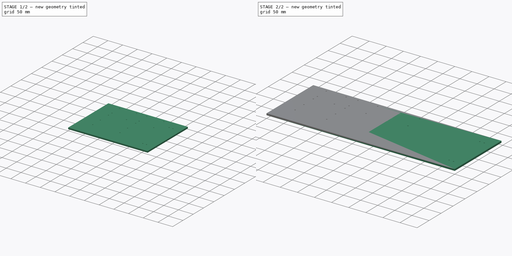
[diagram: build sequence overview — one tinted view per stage of 2, left to right]
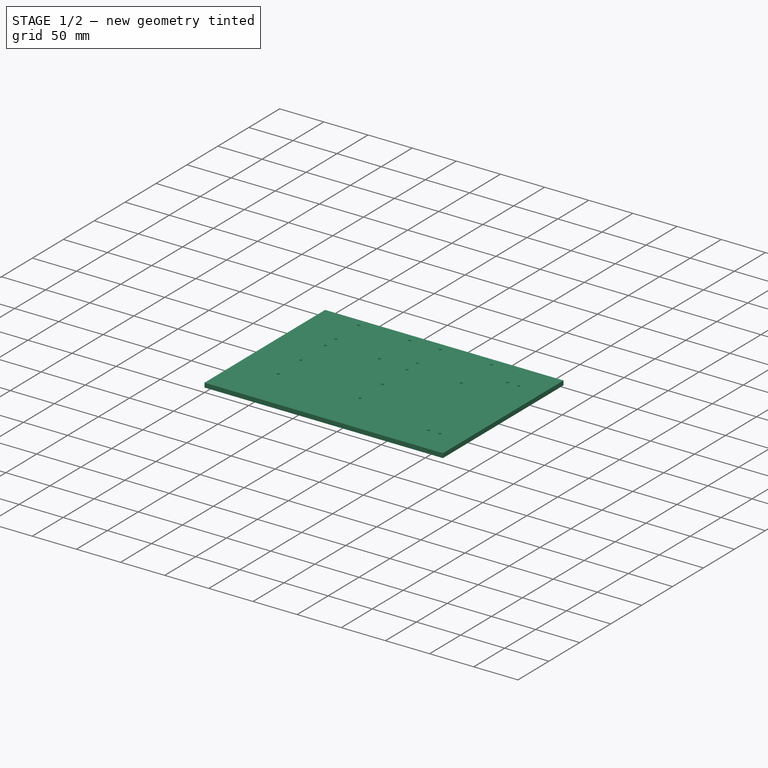
[diagram: stage 1 of 2 — iso view after this stage's code; geometry added in this stage tinted green]
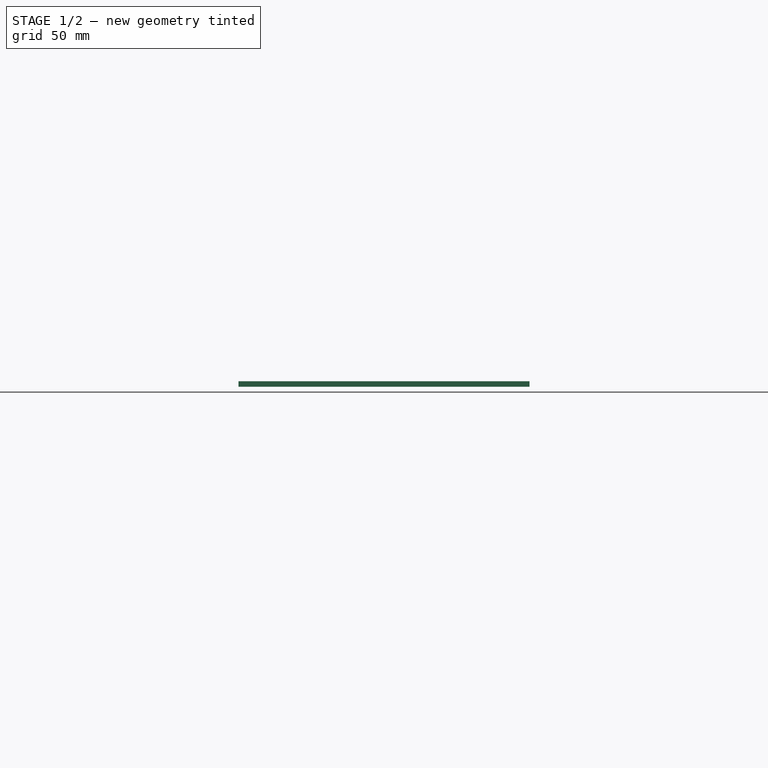
[diagram: stage 1 of 2 — front view after this stage's code; geometry added in this stage tinted green]
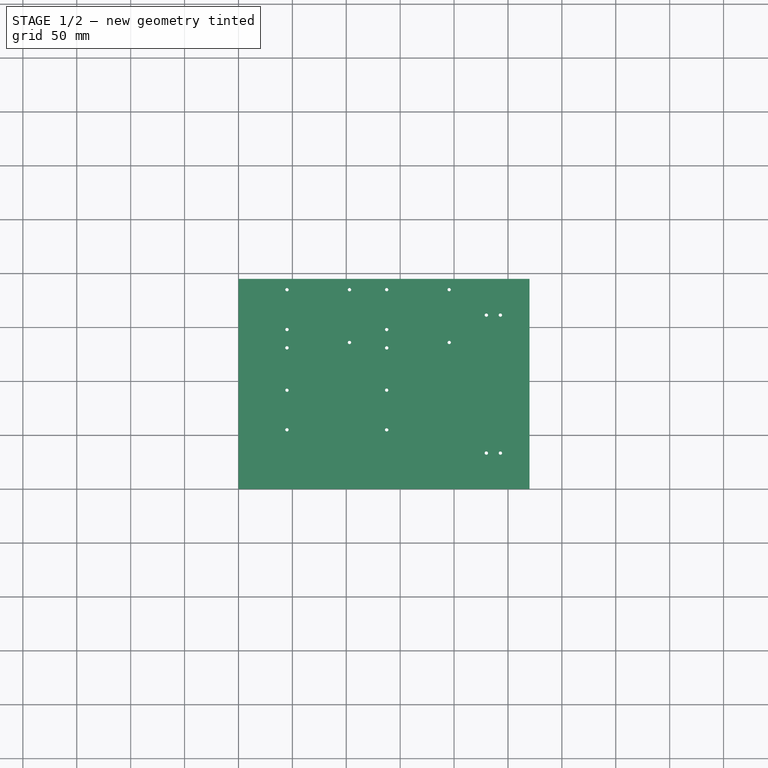
[diagram: stage 1 of 2 — top view after this stage's code; geometry added in this stage tinted green]
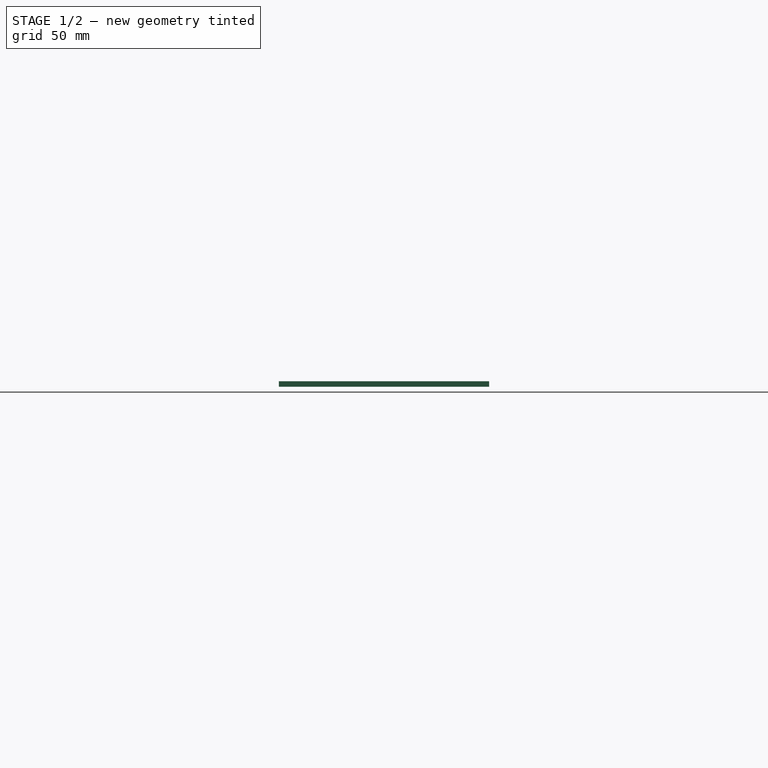
[diagram: stage 1 of 2 — right view after this stage's code; geometry added in this stage tinted green]
FCSTD DOCUMENT  (FreeCAD 0.16R6710 (Git))
Label: glassDesignHalf
License: All rights reserved
LicenseURL: http://en.wikipedia.org/wiki/All_rights_reserved
objects: Drawing::FeatureViewPython×38, Sketcher::SketchObject×36, App::DocumentObjectGroup×11, Part::Box×2, PartDesign::Pocket×2, Drawing::FeatureViewPart×2, Drawing::FeaturePage×1
note: 42 computed .brp shape members not serialized (recipe doc carries the construction recipe); baked Part::Feature solids carry a one-line shape summary decoded from their .brp

FEATURE [Sketcher::SketchObject] Sketch022  label="Hub"
  Placement = pos=(490,-1.5,0) rot=(0,0,1;0rad)
  sketch-geometry (4):
    g0: LineSegment StartX=0 StartY=0 StartZ=0 EndX=55.0005 EndY=0 EndZ=0
    g1: LineSegment StartX=55.0005 StartY=0 StartZ=0 EndX=55.0005 EndY=198.012 EndZ=0
    g2: LineSegment StartX=55.0005 StartY=198.012 StartZ=0 EndX=0 EndY=198.012 EndZ=0
    g3: LineSegment StartX=0 StartY=198.012 StartZ=0 EndX=0 EndY=0 EndZ=0
  constraints (9):
    c: Coincident(g0,g1)
    c: Coincident(g1,g2)
    c: Coincident(g2,g3)
    c: Coincident(g3,g0)
    c: Horizontal(g0)
    c: Horizontal(g2)
    c: Vertical(g1)
    c: Vertical(g3)
    c: Coincident(g0,g-1)
FEATURE [Sketcher::SketchObject] Sketch023  label="hole017"
  Placement = pos=(505,156.5,5) rot=(0,0,1;0rad)
  expr: Placement.Base.x = 505
  sketch-geometry (1):
    g0: Circle CenterX=4.98216 CenterY=5.02276 CenterZ=0 NormalX=0 NormalY=0 NormalZ=1 Radius=1.5614
FEATURE [Sketcher::SketchObject] Sketch024  label="hole018"
  Placement = pos=(518,156.5,5) rot=(0,0,1;0rad)
  expr: Placement.Base.x = 518
  sketch-geometry (1):
    g0: Circle CenterX=4.98216 CenterY=5.02276 CenterZ=0 NormalX=0 NormalY=0 NormalZ=1 Radius=1.5614
FEATURE [Sketcher::SketchObject] Sketch025  label="hole019"
  Placement = pos=(505,28.5,5) rot=(0,0,1;0rad)
  expr: Placement.Base.x = 505
  sketch-geometry (1):
    g0: Circle CenterX=4.98216 CenterY=5.02276 CenterZ=0 NormalX=0 NormalY=0 NormalZ=1 Radius=1.5614
FEATURE [Sketcher::SketchObject] Sketch026  label="hole020"
  Placement = pos=(518,28.5,5) rot=(0,0,1;0rad)
  expr: Placement.Base.x = 518
  sketch-geometry (1):
    g0: Circle CenterX=4.98216 CenterY=5.02276 CenterZ=0 NormalX=0 NormalY=0 NormalZ=1 Radius=1.5614
FEATURE [App::DocumentObjectGroup] Group004  label="USB_HUB"
  Group = -> [Sketch022,Sketch023,Sketch024,Sketch025,Sketch026]
FEATURE [Sketcher::SketchObject] Sketch027  label="MangOH_Right"
  Placement = pos=(255,127.5,5) rot=(0,0,1;0rad)
  sketch-geometry (4):
    g0: LineSegment StartX=0 StartY=0 StartZ=0 EndX=69.0277 EndY=0 EndZ=0
    g1: LineSegment StartX=69.0277 StartY=0 StartZ=0 EndX=69.0277 EndY=60.9956 EndZ=0
    g2: LineSegment StartX=69.0277 StartY=60.9956 StartZ=0 EndX=0 EndY=60.9956 EndZ=0
    g3: LineSegment StartX=0 StartY=60.9956 StartZ=0 EndX=0 EndY=0 EndZ=0
  constraints (8):
    c: Coincident(g0,g1)
    c: Coincident(g1,g2)
    c: Coincident(g2,g3)
    c: Coincident(g3,g0)
    c: Horizontal(g0)
    c: Horizontal(g2)
    c: Vertical(g1)
    c: Vertical(g3)
FEATURE [Sketcher::SketchObject] Sketch028  label="hole021"
  Placement = pos=(255,126,5) rot=(0,0,1;0rad)
  expr: Placement.Base.y = 126
  sketch-geometry (1):
    g0: Circle CenterX=4.98216 CenterY=5.02276 CenterZ=0 NormalX=0 NormalY=0 NormalZ=1 Radius=1.5614
FEATURE [Sketcher::SketchObject] Sketch029  label="hole022"
  Placement = pos=(313,180,5) rot=(0,0,1;0rad)
  expr: Placement.Base.x = 255 + 58
  sketch-geometry (1):
    g0: Circle CenterX=4.98216 CenterY=5.02276 CenterZ=0 NormalX=0 NormalY=0 NormalZ=1 Radius=1.5614
FEATURE [Sketcher::SketchObject] Sketch030  label="hole023"
  Placement = pos=(313,131,5) rot=(0,0,1;0rad)
  expr: Placement.Base.x = 313
  sketch-geometry (1):
    g0: Circle CenterX=4.98216 CenterY=5.02276 CenterZ=0 NormalX=0 NormalY=0 NormalZ=1 Radius=1.5614
FEATURE [App::DocumentObjectGroup] Group003  label="MangOH_Red"
  Group = -> [Sketch013,Sketch014,Sketch015,Sketch016,Sketch017,Sketch018,Sketch019,Sketch020,Sketch027,Sketch028,Sketch029,Sketch030]
FEATURE [App::DocumentObjectGroup] Group  label="1/2U"
  Group = -> [Box,Group001,Group002,Group003,Pocket,Group004]
FEATURE [Drawing::FeatureViewPart] Ortho  label="OrthoBirdView"
  Direction = (0,0,1)
  HiddenWidth = 0.15
  LineWidth = 0.35
  Rotation = 0
  Scale = 1.8
  ShowHiddenLines = false
  ShowSmoothLines = false
  Source = -> Pocket
  Tolerance = 0.05
  ViewResult = <g id="OrthoBirdView"\n   transform="rotate(0,100,535) translate(100,535) scale(1.8,1.8)"\n  >\n<g   stroke="rgb(0, 0, 0)"\n   stroke-width="0.194444"\n   stroke-linecap="butt"\n   stroke-linejoin="miter"\n   fill="none"\n   transform="scale(1,-1)"\n  >\n<path id= "1" d=" M 0 0 L 0 195 " />\n<path id= "2" d=" M 0 0 L 550 0 " />\n<path id= "3" d=" M 0 195 L 550 195 " />\n<path id= "4" d=" M 550 0 L 550 195 " />\n<circle cx ="137.484" cy ="91.7796" r ="1.55752" /><circle cx ="137.516" cy ="131.01" r ="1.56341" /><circle cx ="195.483" cy ="136.037" r ="1.56943" /><circle cx ="137.495" cy ="147.98" r ="1.56729" /><circle cx ="195.462" cy ="185.026" r ="1.57012" /><circle cx ="44.9823" cy ="185.036" r ="1.56973" /><circle cx ="44.9645" cy ="148.03" r ="1.55138" /><circle cx ="102.976" cy ="136.027" r ="1.58211" /><circle cx ="102.971" cy ="185.007" r ="1.56861" /><circle cx ="44.986" cy ="131.063" r ="1.58268" /><circle cx ="137.494" cy ="185.025" r ="1.55947" /><circle cx ="44.9758" cy ="91.7522" r ="1.54812" /><circle cx ="44.9507" cy ="55.0191" r ="1.56373" /><circle cx ="137.504" cy ="54.9986" r ="1.56574" /><circle cx ="259.99" cy ="131.026" r ="1.56529" /><circle cx ="259.989" cy ="55.0431" r ="1.54734" /><circle cx ="259.977" cy ="185.019" r ="1.57007" /><circle cx ="317.986" cy ="185.03" r ="1.55469" /><circle cx ="317.98" cy ="136.037" r ="1.57218" /><circle cx ="522.991" cy ="33.5385" r ="1.59235" /><circle cx ="509.982" cy ="33.538" r ="1.57125" /><circle cx ="509.963" cy ="161.544" r ="1.57303" /><circle cx ="522.975" cy ="161.527" r ="1.5597" /></g>\n</g>
  Visible = true
  X = 100
  Y = 535
FEATURE [Drawing::FeatureViewPart] Ortho001  label="OrthoDepth"
  Direction = (0,-1,0)
  HiddenWidth = 0.15
  LineWidth = 0.35
  Rotation = 90
  Scale = 1.8
  ShowHiddenLines = false
  ShowSmoothLines = false
  Source = -> Pocket
  Tolerance = 0.05
  ViewResult = <blob: 3062 chars omitted>
  Visible = true
  X = 100
  Y = 660
FEATURE [Drawing::FeatureViewPython] dim007  label="dimLength"  # drawing view (typed FeaturePython)
  Rotation = 0
  ViewResult = <g> \n  <line x1="100.000000" y1="535.000000" x2="100.000000" y2="598.500000" style="stroke:rgb(0,0,255);stroke-width:0.50" />\n<line x1="1090.000000" y1="535.000000" x2="1090.000000" y2="598.500000" style="stroke:rgb(0,0,255);stroke-width:0.50" />\n<line x1="100.000000" y1="597.500000" x2="1090.000000" y2="597.500000" style="stroke:rgb(0,0,255);stroke-width:0.50" /> \n  <polygon points="1090.000000,597.500000 1087.000000,596.500000 1086.000000,597.500000 1087.000000,598.500000" style="fill:rgb(0,0,255);stroke:rgb(0,0,255);stroke-width:0" /><polygon points="100.000000,597.500000 103.000000,598.500000 104.000000,597.500000 103.000000,596.500000" style="fill:rgb(0,0,255);stroke:rgb(0,0,255);stroke-width:0" /> \n  <text x="550.000000" y="595.500000" font-family="inherit" font-size="10" fill="rgb(0,0,255)" text-anchor="inherit" transform="rotate(0.000000 550.000000,595.500000)" >550mm</text> </g>
  Visible = true
  X = 0
  Y = 0
  arrowL1 = 3
  arrowL2 = 1
  arrowW = 2
  arrow_scheme = 0
  autoPlaceOffset = 2
  autoPlaceText = false
  click1_x = 567.97
  click1_y = 597.5
  click2_x = 550
  click2_y = 595.5
  comma_decimal_place = false
  dimension_line_overshoot = 1
  gap_datum_points = 0
  halfDimension_linear = false
  lineColor = rgb(0,0,255)
  strokeWidth = 0.5
  textFormat_linear = 550mm
  textRenderer_color = rgb(0,0,255)
  textRenderer_family = inherit
  textRenderer_size = 10
  unit_custom_scale = 1.2
  unit_scheme = 0
FEATURE [Part::Box] Box001  label="1/4"
  Height = 5
  Length = 270
  Width = 195
FEATURE [Sketcher::SketchObject] Sketch031
  Placement = pos=(0,0,5) rot=(0,0,1;0rad)
  Support = -> Box001 [Face6]
  sketch-geometry (18):
    g0: Circle CenterX=45.0007 CenterY=185.02 CenterZ=0 NormalX=0 NormalY=0 NormalZ=1 Radius=1.5637
    g1: Circle CenterX=45.0164 CenterY=148.036 CenterZ=0 NormalX=0 NormalY=0 NormalZ=1 Radius=1.56346
    g2: Circle CenterX=44.9788 CenterY=131.047 CenterZ=0 NormalX=0 NormalY=0 NormalZ=1 Radius=1.57064
    g3: Circle CenterX=102.99 CenterY=185.022 CenterZ=0 NormalX=0 NormalY=0 NormalZ=1 Radius=1.5747
    g4: Circle CenterX=137.501 CenterY=185.021 CenterZ=0 NormalX=0 NormalY=0 NormalZ=1 Radius=1.55657
    g5: Circle CenterX=102.989 CenterY=136.043 CenterZ=0 NormalX=0 NormalY=0 NormalZ=1 Radius=1.56664
    g6: Circle CenterX=195.466 CenterY=185.025 CenterZ=0 NormalX=0 NormalY=0 NormalZ=1 Radius=1.56353
    g7: Circle CenterX=137.498 CenterY=147.976 CenterZ=0 NormalX=0 NormalY=0 NormalZ=1 Radius=1.55376
    g8: Circle CenterX=137.521 CenterY=130.994 CenterZ=0 NormalX=0 NormalY=0 NormalZ=1 Radius=1.55586
    g9: Circle CenterX=44.9819 CenterY=91.7501 CenterZ=0 NormalX=0 NormalY=0 NormalZ=1 Radius=1.53762
    g10: Circle CenterX=137.481 CenterY=91.7836 CenterZ=0 NormalX=0 NormalY=0 NormalZ=1 Radius=1.5579
    g11: Circle CenterX=44.9591 CenterY=55.0195 CenterZ=0 NormalX=0 NormalY=0 NormalZ=1 Radius=1.55028
    g12: Circle CenterX=137.5 CenterY=54.971 CenterZ=0 NormalX=0 NormalY=0 NormalZ=1 Radius=1.5621
    g13: Circle CenterX=195.492 CenterY=136.029 CenterZ=0 NormalX=0 NormalY=0 NormalZ=1 Radius=1.5583
    g14: Circle CenterX=229.972 CenterY=161.408 CenterZ=0 NormalX=0 NormalY=0 NormalZ=1 Radius=1.56999
    g15: Circle CenterX=242.978 CenterY=161.431 CenterZ=0 NormalX=0 NormalY=0 NormalZ=1 Radius=1.57387
    g16: Circle CenterX=229.973 CenterY=33.4261 CenterZ=0 NormalX=0 NormalY=0 NormalZ=1 Radius=1.57027
    g17: Circle CenterX=242.986 CenterY=33.4186 CenterZ=0 NormalX=0 NormalY=0 NormalZ=1 Radius=1.55472
FEATURE [Sketcher::SketchObject] Sketch033  label="hole025"
  Placement = pos=(238,156.4,5) rot=(0,0,1;0rad)
  expr: Placement.Base.x = 238
  sketch-geometry (1):
    g0: Circle CenterX=4.98216 CenterY=5.02276 CenterZ=0 NormalX=0 NormalY=0 NormalZ=1 Radius=1.5614
FEATURE [Sketcher::SketchObject] Sketch034  label="hole026"
  Placement = pos=(225,28.4,5) rot=(0,0,1;0rad)
  expr: Placement.Base.x = 225
  sketch-geometry (1):
    g0: Circle CenterX=4.98216 CenterY=5.02276 CenterZ=0 NormalX=0 NormalY=0 NormalZ=1 Radius=1.5614
FEATURE [Sketcher::SketchObject] Sketch035  label="hole027"
  Placement = pos=(238,28.4,5) rot=(0,0,1;0rad)
  expr: Placement.Base.x = 238
  sketch-geometry (1):
    g0: Circle CenterX=4.98216 CenterY=5.02276 CenterZ=0 NormalX=0 NormalY=0 NormalZ=1 Radius=1.5614
FEATURE [Sketcher::SketchObject] Sketch036  label="hole028"
  Placement = pos=(225,156.4,5) rot=(0,0,1;0rad)
  expr: Placement.Base.x = 225
  sketch-geometry (1):
    g0: Circle CenterX=4.98216 CenterY=5.02276 CenterZ=0 NormalX=0 NormalY=0 NormalZ=1 Radius=1.5614
FEATURE [App::DocumentObjectGroup] Group006  label="USB_HUB001"
  Group = -> [Sketch033,Sketch034,Sketch035,Sketch036]
FEATURE [PartDesign::Pocket] Pocket001
  Length = 5
  Sketch = -> Sketch031
  Type = 0
FEATURE [App::DocumentObjectGroup] Group005  label="1/4U"
  Group = -> [Box001,Group006,Pocket001]
FEATURE [Drawing::FeatureViewPython] dim010  label="dimHeight"  # drawing view (typed FeaturePython)
  Rotation = 0
  ViewResult = <g> \n  <line x1="100.000000" y1="651.000000" x2="84.000000" y2="651.000000" style="stroke:rgb(0,0,255);stroke-width:0.50" />\n<line x1="100.000000" y1="660.000000" x2="84.000000" y2="660.000000" style="stroke:rgb(0,0,255);stroke-width:0.50" />\n<line x1="85.000000" y1="651.000000" x2="85.000000" y2="660.000000" style="stroke:rgb(0,0,255);stroke-width:0.50" /> \n  <polygon points="85.000000,660.000000 84.000000,663.000000 85.000000,664.000000 86.000000,663.000000" style="fill:rgb(0,0,255);stroke:rgb(0,0,255);stroke-width:0" /><polygon points="85.000000,651.000000 86.000000,648.000000 85.000000,647.000000 84.000000,648.000000" style="fill:rgb(0,0,255);stroke:rgb(0,0,255);stroke-width:0" /> \n  <text x="80.000000" y="667.000000" font-family="inherit" font-size="10" fill="rgb(0,0,255)" text-anchor="inherit" transform="rotate(-90.000000 80.000000,667.000000)" >6mm</text> </g>
  Visible = true
  X = 0
  Y = 0
  arrowL1 = 3
  arrowL2 = 1
  arrowW = 2
  arrow_scheme = 0
  autoPlaceOffset = 2
  autoPlaceText = false
  click1_x = 85
  click1_y = 659.403
  click2_x = 80
  click2_y = 667
  comma_decimal_place = false
  dimension_line_overshoot = 1
  gap_datum_points = 0
  halfDimension_linear = false
  lineColor = rgb(0,0,255)
  strokeWidth = 0.5
  textFormat_linear = 6mm
  textRenderer_color = rgb(0,0,255)
  textRenderer_family = inherit
  textRenderer_size = 10
  unit_custom_scale = 1.2
  unit_scheme = 0
FEATURE [Drawing::FeatureViewPython] dim016  label="dimWidth"  # drawing view (typed FeaturePython)
  Rotation = 0
  ViewResult = <g> \n  <line x1="1090.000000" y1="184.000000" x2="1131.000000" y2="184.000000" style="stroke:rgb(0,0,255);stroke-width:0.50" />\n<line x1="1090.000000" y1="535.000000" x2="1131.000000" y2="535.000000" style="stroke:rgb(0,0,255);stroke-width:0.50" />\n<line x1="1130.000000" y1="184.000000" x2="1130.000000" y2="535.000000" style="stroke:rgb(0,0,255);stroke-width:0.50" /> \n  <polygon points="1130.000000,535.000000 1131.000000,532.000000 1130.000000,531.000000 1129.000000,532.000000" style="fill:rgb(0,0,255);stroke:rgb(0,0,255);stroke-width:0" /><polygon points="1130.000000,184.000000 1129.000000,187.000000 1130.000000,188.000000 1131.000000,187.000000" style="fill:rgb(0,0,255);stroke:rgb(0,0,255);stroke-width:0" /> \n  <text x="1127.000000" y="370.000000" font-family="inherit" font-size="10" fill="rgb(0,0,255)" text-anchor="inherit" transform="rotate(-90.000000 1127.000000,370.000000)" >195mm</text> </g>
  Visible = true
  X = 0
  Y = 0
  arrowL1 = 3
  arrowL2 = 1
  arrowW = 2
  arrow_scheme = 0
  autoPlaceOffset = 2
  autoPlaceText = false
  click1_x = 1130
  click1_y = 461.87
  click2_x = 1127
  click2_y = 370
  comma_decimal_place = false
  dimension_line_overshoot = 1
  gap_datum_points = 0
  halfDimension_linear = false
  lineColor = rgb(0,0,255)
  strokeWidth = 0.5
  textFormat_linear = %(value)3.0fmm
  textRenderer_color = rgb(0,0,255)
  textRenderer_family = inherit
  textRenderer_size = 10
  unit_custom_scale = 1.2
  unit_scheme = 0
FEATURE [Drawing::FeatureViewPython] text001  label="Title"  # drawing view (typed FeaturePython)
  Rotation = 0
  ViewResult = <g> <text x="575.841778" y="55.000000" font-family="inherit" font-size="50" fill="rgb(0,0,0)" text-anchor="inherit" transform="rotate(0.000000 575.841778,55.000000)" >1/2U TestBed Specs</text> </g>
  Visible = true
  X = 0
  Y = 0
  click1_x = 575
  click1_y = 55
  rotation = 0
  text = 1/2U TestBed Specs
  textRenderer_addText_color = rgb(0,0,0)
  textRenderer_addText_family = inherit
  textRenderer_addText_size = 50
FEATURE [Drawing::FeatureViewPython] dim018  label="Right1"  # drawing view (typed FeaturePython)
  Rotation = 0
  ViewResult = <g> \n  <line x1="1090.000000" y1="184.000000" x2="949.000000" y2="184.000000" style="stroke:rgb(0,0,255);stroke-width:0.50" />\n<line x1="1017.949600" y1="244.454800" x2="949.000000" y2="244.454800" style="stroke:rgb(0,0,255);stroke-width:0.50" />\n<line x1="950.000000" y1="184.000000" x2="950.000000" y2="244.454800" style="stroke:rgb(0,0,255);stroke-width:0.50" /> \n  <polygon points="950.000000,244.454800 951.000000,241.454800 950.000000,240.454800 949.000000,241.454800" style="fill:rgb(0,0,255);stroke:rgb(0,0,255);stroke-width:0" /><polygon points="950.000000,184.000000 949.000000,187.000000 950.000000,188.000000 951.000000,187.000000" style="fill:rgb(0,0,255);stroke:rgb(0,0,255);stroke-width:0" /> \n  <text x="947.000000" y="230.000000" font-family="inherit" font-size="10" fill="rgb(0,0,255)" text-anchor="inherit" transform="rotate(-90.000000 947.000000,230.000000)" >33.5mm</text> </g>
  Visible = true
  X = 0
  Y = 0
  arrowL1 = 3
  arrowL2 = 1
  arrowW = 2
  arrow_scheme = 0
  autoPlaceOffset = 2
  autoPlaceText = false
  click1_x = 950
  click1_y = 239.283
  click2_x = 947
  click2_y = 230
  comma_decimal_place = false
  dimension_line_overshoot = 1
  gap_datum_points = 0
  halfDimension_linear = false
  lineColor = rgb(0,0,255)
  strokeWidth = 0.5
  textFormat_linear = 33.5mm
  textRenderer_color = rgb(0,0,255)
  textRenderer_family = inherit
  textRenderer_size = 10
  unit_custom_scale = 1.2
  unit_scheme = 0
FEATURE [Drawing::FeatureViewPython] dim019  label="Right2"  # drawing view (typed FeaturePython)
  Rotation = 0
  ViewResult = <g> \n  <line x1="1017.967600" y1="474.631600" x2="949.000000" y2="474.631600" style="stroke:rgb(0,0,255);stroke-width:0.50" />\n<line x1="1090.000000" y1="535.000000" x2="949.000000" y2="535.000000" style="stroke:rgb(0,0,255);stroke-width:0.50" />\n<line x1="950.000000" y1="474.631600" x2="950.000000" y2="535.000000" style="stroke:rgb(0,0,255);stroke-width:0.50" /> \n  <polygon points="950.000000,535.000000 951.000000,532.000000 950.000000,531.000000 949.000000,532.000000" style="fill:rgb(0,0,255);stroke:rgb(0,0,255);stroke-width:0" /><polygon points="950.000000,474.631600 949.000000,477.631600 950.000000,478.631600 951.000000,477.631600" style="fill:rgb(0,0,255);stroke:rgb(0,0,255);stroke-width:0" /> \n  <text x="947.000000" y="520.000000" font-family="inherit" font-size="10" fill="rgb(0,0,255)" text-anchor="inherit" transform="rotate(-90.000000 947.000000,520.000000)" >33.5mm</text> </g>
  Visible = true
  X = 0
  Y = 0
  arrowL1 = 3
  arrowL2 = 1
  arrowW = 2
  arrow_scheme = 0
  autoPlaceOffset = 2
  autoPlaceText = false
  click1_x = 950
  click1_y = 508.569
  click2_x = 947
  click2_y = 520
  comma_decimal_place = false
  dimension_line_overshoot = 1
  gap_datum_points = 0
  halfDimension_linear = false
  lineColor = rgb(0,0,255)
  strokeWidth = 0.5
  textFormat_linear = 33.5mm
  textRenderer_color = rgb(0,0,255)
  textRenderer_family = inherit
  textRenderer_size = 10
  unit_custom_scale = 1.2
  unit_scheme = 0
FEATURE [App::DocumentObjectGroup] Group010  label="RightDim"
  Group = -> [dim018,dim019]
FEATURE [Drawing::FeatureViewPython] text002  label="Caption"  # drawing view (typed FeaturePython)
  Rotation = 0
  ViewResult = <g> <text x="200.000000" y="750.000000" font-family="inherit" font-size="20" fill="rgb(0,0,0)" text-anchor="inherit" transform="rotate(0.000000 200.000000,750.000000)" >*Diameter of the holes are all 3.2mm</text> </g>
  Visible = true
  X = 0
  Y = 0
  click1_x = 200
  click1_y = 750
  rotation = 0
  text = *Diameter of the holes are all 3.2mm
  textRenderer_addText_color = rgb(0,0,0)
  textRenderer_addText_family = inherit
  textRenderer_addText_size = 20
FEATURE [Drawing::FeatureViewPython] dim001  # drawing view (typed FeaturePython)
  Rotation = 0
  ViewResult = <g> \n  <line x1="100.000000" y1="184.000000" x2="100.000000" y2="174.000000" style="stroke:rgb(0,0,255);stroke-width:0.50" />\n<line x1="180.968140" y1="201.935200" x2="180.968140" y2="174.000000" style="stroke:rgb(0,0,255);stroke-width:0.50" />\n<line x1="100.000000" y1="175.000000" x2="180.968140" y2="175.000000" style="stroke:rgb(0,0,255);stroke-width:0.50" /> \n  <polygon points="180.968140,175.000000 177.968140,174.000000 176.968140,175.000000 177.968140,176.000000" style="fill:rgb(0,0,255);stroke:rgb(0,0,255);stroke-width:0" /><polygon points="100.000000,175.000000 103.000000,176.000000 104.000000,175.000000 103.000000,174.000000" style="fill:rgb(0,0,255);stroke:rgb(0,0,255);stroke-width:0" /> \n  <text x="124.390000" y="172.000000" font-family="inherit" font-size="10" fill="rgb(0,0,255)" text-anchor="inherit" transform="rotate(0.000000 124.390000,172.000000)" >45mm</text> </g>
  Visible = true
  X = 0
  Y = 0
  arrowL1 = 3
  arrowL2 = 1
  arrowW = 2
  arrow_scheme = 0
  autoPlaceOffset = 2
  autoPlaceText = false
  click1_x = 180
  click1_y = 175
  click2_x = 124.39
  click2_y = 172
  comma_decimal_place = false
  dimension_line_overshoot = 1
  gap_datum_points = 0
  halfDimension_linear = false
  lineColor = rgb(0,0,255)
  strokeWidth = 0.5
  textFormat_linear = 45mm
  textRenderer_color = rgb(0,0,255)
  textRenderer_family = inherit
  textRenderer_size = 10
  unit_custom_scale = 1
  unit_scheme = 0
FEATURE [Drawing::FeatureViewPython] dim002  # drawing view (typed FeaturePython)
  Rotation = 0
  ViewResult = <g> \n  <line x1="285.347800" y1="201.987400" x2="285.347800" y2="154.000000" style="stroke:rgb(0,0,255);stroke-width:0.50" />\n<line x1="100.000000" y1="184.000000" x2="100.000000" y2="154.000000" style="stroke:rgb(0,0,255);stroke-width:0.50" />\n<line x1="285.347800" y1="155.000000" x2="100.000000" y2="155.000000" style="stroke:rgb(0,0,255);stroke-width:0.50" /> \n  <polygon points="100.000000,155.000000 103.000000,156.000000 104.000000,155.000000 103.000000,154.000000" style="fill:rgb(0,0,255);stroke:rgb(0,0,255);stroke-width:0" /><polygon points="285.347800,155.000000 282.347800,154.000000 281.347800,155.000000 282.347800,156.000000" style="fill:rgb(0,0,255);stroke:rgb(0,0,255);stroke-width:0" /> \n  <text x="177.450000" y="152.000000" font-family="inherit" font-size="10" fill="rgb(0,0,255)" text-anchor="inherit" transform="rotate(0.000000 177.450000,152.000000)" >103mm</text> </g>
  Visible = true
  X = 0
  Y = 0
  arrowL1 = 3
  arrowL2 = 1
  arrowW = 2
  arrow_scheme = 0
  autoPlaceOffset = 2
  autoPlaceText = false
  click1_x = 103.017
  click1_y = 155
  click2_x = 177.45
  click2_y = 152
  comma_decimal_place = false
  dimension_line_overshoot = 1
  gap_datum_points = 0
  halfDimension_linear = false
  lineColor = rgb(0,0,255)
  strokeWidth = 0.5
  textFormat_linear = 103mm
  textRenderer_color = rgb(0,0,255)
  textRenderer_family = inherit
  textRenderer_size = 10
  unit_custom_scale = 1
  unit_scheme = 0
FEATURE [Drawing::FeatureViewPython] dim003  # drawing view (typed FeaturePython)
  Rotation = 0
  ViewResult = <g> \n  <line x1="100.000000" y1="184.000000" x2="100.000000" y2="134.000000" style="stroke:rgb(0,0,255);stroke-width:0.50" />\n<line x1="347.489200" y1="201.955000" x2="347.489200" y2="134.000000" style="stroke:rgb(0,0,255);stroke-width:0.50" />\n<line x1="100.000000" y1="135.000000" x2="347.489200" y2="135.000000" style="stroke:rgb(0,0,255);stroke-width:0.50" /> \n  <polygon points="347.489200,135.000000 344.489200,134.000000 343.489200,135.000000 344.489200,136.000000" style="fill:rgb(0,0,255);stroke:rgb(0,0,255);stroke-width:0" /><polygon points="100.000000,135.000000 103.000000,136.000000 104.000000,135.000000 103.000000,134.000000" style="fill:rgb(0,0,255);stroke:rgb(0,0,255);stroke-width:0" /> \n  <text x="202.480000" y="132.000000" font-family="inherit" font-size="10" fill="rgb(0,0,255)" text-anchor="inherit" transform="rotate(0.000000 202.480000,132.000000)" >137.5mm</text> </g>
  Visible = true
  X = 0
  Y = 0
  arrowL1 = 3
  arrowL2 = 1
  arrowW = 2
  arrow_scheme = 0
  autoPlaceOffset = 2
  autoPlaceText = false
  click1_x = 317.001
  click1_y = 135
  click2_x = 202.48
  click2_y = 132
  comma_decimal_place = false
  dimension_line_overshoot = 1
  gap_datum_points = 0
  halfDimension_linear = false
  lineColor = rgb(0,0,255)
  strokeWidth = 0.5
  textFormat_linear = 137.5mm
  textRenderer_color = rgb(0,0,255)
  textRenderer_family = inherit
  textRenderer_size = 10
  unit_custom_scale = 1
  unit_scheme = 0
FEATURE [Drawing::FeatureViewPython] dim004  # drawing view (typed FeaturePython)
  Rotation = 0
  ViewResult = <g> \n  <line x1="100.000000" y1="184.000000" x2="100.000000" y2="114.000000" style="stroke:rgb(0,0,255);stroke-width:0.50" />\n<line x1="451.831600" y1="201.953200" x2="451.831600" y2="114.000000" style="stroke:rgb(0,0,255);stroke-width:0.50" />\n<line x1="100.000000" y1="115.000000" x2="451.831600" y2="115.000000" style="stroke:rgb(0,0,255);stroke-width:0.50" /> \n  <polygon points="451.831600,115.000000 448.831600,114.000000 447.831600,115.000000 448.831600,116.000000" style="fill:rgb(0,0,255);stroke:rgb(0,0,255);stroke-width:0" /><polygon points="100.000000,115.000000 103.000000,116.000000 104.000000,115.000000 103.000000,114.000000" style="fill:rgb(0,0,255);stroke:rgb(0,0,255);stroke-width:0" /> \n  <text x="247.580000" y="112.000000" font-family="inherit" font-size="10" fill="rgb(0,0,255)" text-anchor="inherit" transform="rotate(0.000000 247.580000,112.000000)" >195.5mm</text> </g>
  Visible = true
  X = 0
  Y = 0
  arrowL1 = 3
  arrowL2 = 1
  arrowW = 2
  arrow_scheme = 0
  autoPlaceOffset = 2
  autoPlaceText = false
  click1_x = 386.902
  click1_y = 115
  click2_x = 247.58
  click2_y = 112
  comma_decimal_place = false
  dimension_line_overshoot = 1
  gap_datum_points = 0
  halfDimension_linear = false
  lineColor = rgb(0,0,255)
  strokeWidth = 0.5
  textFormat_linear = 195.5mm
  textRenderer_color = rgb(0,0,255)
  textRenderer_family = inherit
  textRenderer_size = 10
  unit_custom_scale = 1
  unit_scheme = 0
FEATURE [Drawing::FeatureViewPython] dim005  # drawing view (typed FeaturePython)
  Rotation = 0
  ViewResult = <g> \n  <line x1="100.000000" y1="184.000000" x2="100.000000" y2="94.000000" style="stroke:rgb(0,0,255);stroke-width:0.50" />\n<line x1="567.958600" y1="201.965800" x2="567.958600" y2="94.000000" style="stroke:rgb(0,0,255);stroke-width:0.50" />\n<line x1="100.000000" y1="95.000000" x2="567.958600" y2="95.000000" style="stroke:rgb(0,0,255);stroke-width:0.50" /> \n  <polygon points="567.958600,95.000000 564.958600,94.000000 563.958600,95.000000 564.958600,96.000000" style="fill:rgb(0,0,255);stroke:rgb(0,0,255);stroke-width:0" /><polygon points="100.000000,95.000000 103.000000,96.000000 104.000000,95.000000 103.000000,94.000000" style="fill:rgb(0,0,255);stroke:rgb(0,0,255);stroke-width:0" /> \n  <text x="304.720000" y="92.000000" font-family="inherit" font-size="10" fill="rgb(0,0,255)" text-anchor="inherit" transform="rotate(0.000000 304.720000,92.000000)" >260mm</text> </g>
  Visible = true
  X = 0
  Y = 0
  arrowL1 = 3
  arrowL2 = 1
  arrowW = 2
  arrow_scheme = 0
  autoPlaceOffset = 2
  autoPlaceText = false
  click1_x = 351.944
  click1_y = 95
  click2_x = 304.72
  click2_y = 92
  comma_decimal_place = false
  dimension_line_overshoot = 1
  gap_datum_points = 0
  halfDimension_linear = false
  lineColor = rgb(0,0,255)
  strokeWidth = 0.5
  textFormat_linear = 260mm
  textRenderer_color = rgb(0,0,255)
  textRenderer_family = inherit
  textRenderer_size = 10
  unit_custom_scale = 1
  unit_scheme = 0
FEATURE [Drawing::FeatureViewPython] dim006  # drawing view (typed FeaturePython)
  Rotation = 0
  ViewResult = <g> \n  <line x1="672.374800" y1="201.946000" x2="672.374800" y2="74.000000" style="stroke:rgb(0,0,255);stroke-width:0.50" />\n<line x1="100.000000" y1="184.000000" x2="100.000000" y2="74.000000" style="stroke:rgb(0,0,255);stroke-width:0.50" />\n<line x1="672.374800" y1="75.000000" x2="100.000000" y2="75.000000" style="stroke:rgb(0,0,255);stroke-width:0.50" /> \n  <polygon points="100.000000,75.000000 103.000000,76.000000 104.000000,75.000000 103.000000,74.000000" style="fill:rgb(0,0,255);stroke:rgb(0,0,255);stroke-width:0" /><polygon points="672.374800,75.000000 669.374800,74.000000 668.374800,75.000000 669.374800,76.000000" style="fill:rgb(0,0,255);stroke:rgb(0,0,255);stroke-width:0" /> \n  <text x="361.860000" y="72.000000" font-family="inherit" font-size="10" fill="rgb(0,0,255)" text-anchor="inherit" transform="rotate(0.000000 361.860000,72.000000)" >318mm</text> </g>
  Visible = true
  X = 0
  Y = 0
  arrowL1 = 3
  arrowL2 = 1
  arrowW = 2
  arrow_scheme = 0
  autoPlaceOffset = 2
  autoPlaceText = false
  click1_x = 115.353
  click1_y = 75
  click2_x = 361.86
  click2_y = 72
  comma_decimal_place = false
  dimension_line_overshoot = 1
  gap_datum_points = 0
  halfDimension_linear = false
  lineColor = rgb(0,0,255)
  strokeWidth = 0.5
  textFormat_linear = 318mm
  textRenderer_color = rgb(0,0,255)
  textRenderer_family = inherit
  textRenderer_size = 10
  unit_custom_scale = 1
  unit_scheme = 0
FEATURE [Drawing::FeatureViewPython] dim008  # drawing view (typed FeaturePython)
  Rotation = 0
  ViewResult = <g> \n  <line x1="1041.355000" y1="244.251400" x2="1041.355000" y2="174.000000" style="stroke:rgb(0,0,255);stroke-width:0.50" />\n<line x1="1090.000000" y1="184.000000" x2="1090.000000" y2="174.000000" style="stroke:rgb(0,0,255);stroke-width:0.50" />\n<line x1="1041.355000" y1="175.000000" x2="1090.000000" y2="175.000000" style="stroke:rgb(0,0,255);stroke-width:0.50" /> \n  <polygon points="1090.000000,175.000000 1087.000000,174.000000 1086.000000,175.000000 1087.000000,176.000000" style="fill:rgb(0,0,255);stroke:rgb(0,0,255);stroke-width:0" /><polygon points="1041.355000,175.000000 1044.355000,176.000000 1045.355000,175.000000 1044.355000,174.000000" style="fill:rgb(0,0,255);stroke:rgb(0,0,255);stroke-width:0" /> \n  <text x="1051.970000" y="172.000000" font-family="inherit" font-size="10" fill="rgb(0,0,255)" text-anchor="inherit" transform="rotate(0.000000 1051.970000,172.000000)" >27mm</text> </g>
  Visible = true
  X = 0
  Y = 0
  arrowL1 = 3
  arrowL2 = 1
  arrowW = 2
  arrow_scheme = 0
  autoPlaceOffset = 2
  autoPlaceText = false
  click1_x = 1087.92
  click1_y = 175
  click2_x = 1051.97
  click2_y = 172
  comma_decimal_place = false
  dimension_line_overshoot = 1
  gap_datum_points = 0
  halfDimension_linear = false
  lineColor = rgb(0,0,255)
  strokeWidth = 0.5
  textFormat_linear = 27mm
  textRenderer_color = rgb(0,0,255)
  textRenderer_family = inherit
  textRenderer_size = 10
  unit_custom_scale = 1
  unit_scheme = 0
FEATURE [Drawing::FeatureViewPython] dim009  # drawing view (typed FeaturePython)
  Rotation = 0
  ViewResult = <g> \n  <line x1="1090.000000" y1="184.000000" x2="1090.000000" y2="154.000000" style="stroke:rgb(0,0,255);stroke-width:0.50" />\n<line x1="1017.933400" y1="244.220800" x2="1017.933400" y2="154.000000" style="stroke:rgb(0,0,255);stroke-width:0.50" />\n<line x1="1090.000000" y1="155.000000" x2="1017.933400" y2="155.000000" style="stroke:rgb(0,0,255);stroke-width:0.50" /> \n  <polygon points="1017.933400,155.000000 1020.933400,156.000000 1021.933400,155.000000 1020.933400,154.000000" style="fill:rgb(0,0,255);stroke:rgb(0,0,255);stroke-width:0" /><polygon points="1090.000000,155.000000 1087.000000,154.000000 1086.000000,155.000000 1087.000000,156.000000" style="fill:rgb(0,0,255);stroke:rgb(0,0,255);stroke-width:0" /> \n  <text x="1036.710000" y="152.000000" font-family="inherit" font-size="10" fill="rgb(0,0,255)" text-anchor="inherit" transform="rotate(0.000000 1036.710000,152.000000)" >40mm</text> </g>
  Visible = true
  X = 0
  Y = 0
  arrowL1 = 3
  arrowL2 = 1
  arrowW = 2
  arrow_scheme = 0
  autoPlaceOffset = 2
  autoPlaceText = false
  click1_x = 1018.88
  click1_y = 155
  click2_x = 1036.71
  click2_y = 152
  comma_decimal_place = false
  dimension_line_overshoot = 1
  gap_datum_points = 0
  halfDimension_linear = false
  lineColor = rgb(0,0,255)
  strokeWidth = 0.5
  textFormat_linear = 40mm
  textRenderer_color = rgb(0,0,255)
  textRenderer_family = inherit
  textRenderer_size = 10
  unit_custom_scale = 1
  unit_scheme = 0
FEATURE [App::DocumentObjectGroup] Group008  label="TopDim"
  Group = -> [dim001,dim002,dim003,dim004,dim005,dim006,dim008,dim009]
FEATURE [Drawing::FeatureViewPython] dim011  # drawing view (typed FeaturePython)
  Rotation = 0
  ViewResult = <g> \n  <line x1="100.000000" y1="184.000000" x2="94.000000" y2="184.000000" style="stroke:rgb(0,0,255);stroke-width:0.50" />\n<line x1="180.968140" y1="201.935200" x2="94.000000" y2="201.935200" style="stroke:rgb(0,0,255);stroke-width:0.50" />\n<line x1="95.000000" y1="184.000000" x2="95.000000" y2="201.935200" style="stroke:rgb(0,0,255);stroke-width:0.50" /> \n  <polygon points="95.000000,201.935200 96.000000,198.935200 95.000000,197.935200 94.000000,198.935200" style="fill:rgb(0,0,255);stroke:rgb(0,0,255);stroke-width:0" /><polygon points="95.000000,184.000000 94.000000,187.000000 95.000000,188.000000 96.000000,187.000000" style="fill:rgb(0,0,255);stroke:rgb(0,0,255);stroke-width:0" /> \n  <text x="92.000000" y="215.130000" font-family="inherit" font-size="10" fill="rgb(0,0,255)" text-anchor="inherit" transform="rotate(-90.000000 92.000000,215.130000)" >10mm</text> </g>
  Visible = true
  X = 0
  Y = 0
  arrowL1 = 3
  arrowL2 = 1
  arrowW = 2
  arrow_scheme = 0
  autoPlaceOffset = 2
  autoPlaceText = false
  click1_x = 95
  click1_y = 196.79
  click2_x = 92
  click2_y = 215.13
  comma_decimal_place = false
  dimension_line_overshoot = 1
  gap_datum_points = 0
  halfDimension_linear = false
  lineColor = rgb(0,0,255)
  strokeWidth = 0.5
  textFormat_linear = 10mm
  textRenderer_color = rgb(0,0,255)
  textRenderer_family = inherit
  textRenderer_size = 10
  unit_custom_scale = 1
  unit_scheme = 0
FEATURE [Drawing::FeatureViewPython] dim012  # drawing view (typed FeaturePython)
  Rotation = 0
  ViewResult = <g> \n  <line x1="100.000000" y1="184.000000" x2="74.000000" y2="184.000000" style="stroke:rgb(0,0,255);stroke-width:0.50" />\n<line x1="180.936100" y1="268.546000" x2="74.000000" y2="268.546000" style="stroke:rgb(0,0,255);stroke-width:0.50" />\n<line x1="75.000000" y1="184.000000" x2="75.000000" y2="268.546000" style="stroke:rgb(0,0,255);stroke-width:0.50" /> \n  <polygon points="75.000000,268.546000 76.000000,265.546000 75.000000,264.546000 74.000000,265.546000" style="fill:rgb(0,0,255);stroke:rgb(0,0,255);stroke-width:0" /><polygon points="75.000000,184.000000 74.000000,187.000000 75.000000,188.000000 76.000000,187.000000" style="fill:rgb(0,0,255);stroke:rgb(0,0,255);stroke-width:0" /> \n  <text x="72.000000" y="235.010000" font-family="inherit" font-size="10" fill="rgb(0,0,255)" text-anchor="inherit" transform="rotate(-90.000000 72.000000,235.010000)" >47mm</text> </g>
  Visible = true
  X = 0
  Y = 0
  arrowL1 = 3
  arrowL2 = 1
  arrowW = 2
  arrow_scheme = 0
  autoPlaceOffset = 2
  autoPlaceText = false
  click1_x = 75
  click1_y = 245.862
  click2_x = 72
  click2_y = 235.01
  comma_decimal_place = false
  dimension_line_overshoot = 1
  gap_datum_points = 0
  halfDimension_linear = false
  lineColor = rgb(0,0,255)
  strokeWidth = 0.5
  textFormat_linear = 47mm
  textRenderer_color = rgb(0,0,255)
  textRenderer_family = inherit
  textRenderer_size = 10
  unit_custom_scale = 1
  unit_scheme = 0
FEATURE [Drawing::FeatureViewPython] dim014  # drawing view (typed FeaturePython)
  Rotation = 0
  ViewResult = <g> \n  <line x1="180.911260" y1="435.965620" x2="94.000000" y2="435.965620" style="stroke:rgb(0,0,255);stroke-width:0.50" />\n<line x1="100.000000" y1="535.000000" x2="94.000000" y2="535.000000" style="stroke:rgb(0,0,255);stroke-width:0.50" />\n<line x1="95.000000" y1="435.965620" x2="95.000000" y2="535.000000" style="stroke:rgb(0,0,255);stroke-width:0.50" /> \n  <polygon points="95.000000,535.000000 96.000000,532.000000 95.000000,531.000000 94.000000,532.000000" style="fill:rgb(0,0,255);stroke:rgb(0,0,255);stroke-width:0" /><polygon points="95.000000,435.965620 94.000000,438.965620 95.000000,439.965620 96.000000,438.965620" style="fill:rgb(0,0,255);stroke:rgb(0,0,255);stroke-width:0" /> \n  <text x="92.000000" y="498.470000" font-family="inherit" font-size="10" fill="rgb(0,0,255)" text-anchor="inherit" transform="rotate(-90.000000 92.000000,498.470000)" >55mm</text> </g>
  Visible = true
  X = 0
  Y = 0
  arrowL1 = 3
  arrowL2 = 1
  arrowW = 2
  arrow_scheme = 0
  autoPlaceOffset = 2
  autoPlaceText = false
  click1_x = 95
  click1_y = 519.536
  click2_x = 92
  click2_y = 498.47
  comma_decimal_place = false
  dimension_line_overshoot = 1
  gap_datum_points = 0
  halfDimension_linear = false
  lineColor = rgb(0,0,255)
  strokeWidth = 0.5
  textFormat_linear = 55mm
  textRenderer_color = rgb(0,0,255)
  textRenderer_family = inherit
  textRenderer_size = 10
  unit_custom_scale = 1
  unit_scheme = 0
FEATURE [Drawing::FeatureViewPython] dim015  # drawing view (typed FeaturePython)
  Rotation = 0
  ViewResult = <g> \n  <line x1="180.956440" y1="369.846040" x2="74.000000" y2="369.846040" style="stroke:rgb(0,0,255);stroke-width:0.50" />\n<line x1="100.000000" y1="535.000000" x2="74.000000" y2="535.000000" style="stroke:rgb(0,0,255);stroke-width:0.50" />\n<line x1="75.000000" y1="369.846040" x2="75.000000" y2="535.000000" style="stroke:rgb(0,0,255);stroke-width:0.50" /> \n  <polygon points="75.000000,535.000000 76.000000,532.000000 75.000000,531.000000 74.000000,532.000000" style="fill:rgb(0,0,255);stroke:rgb(0,0,255);stroke-width:0" /><polygon points="75.000000,369.846040 74.000000,372.846040 75.000000,373.846040 76.000000,372.846040" style="fill:rgb(0,0,255);stroke:rgb(0,0,255);stroke-width:0" /> \n  <text x="72.000000" y="468.540000" font-family="inherit" font-size="10" fill="rgb(0,0,255)" text-anchor="inherit" transform="rotate(-90.000000 72.000000,468.540000)" >91.75mm</text> </g>
  Visible = true
  X = 0
  Y = 0
  arrowL1 = 3
  arrowL2 = 1
  arrowW = 2
  arrow_scheme = 0
  autoPlaceOffset = 2
  autoPlaceText = false
  click1_x = 75
  click1_y = 523.021
  click2_x = 72
  click2_y = 468.54
  comma_decimal_place = false
  dimension_line_overshoot = 1
  gap_datum_points = 0
  halfDimension_linear = false
  lineColor = rgb(0,0,255)
  strokeWidth = 0.5
  textFormat_linear = 91.75mm
  textRenderer_color = rgb(0,0,255)
  textRenderer_family = inherit
  textRenderer_size = 10
  unit_custom_scale = 1
  unit_scheme = 0
FEATURE [Drawing::FeatureViewPython] dim017  # drawing view (typed FeaturePython)
  Rotation = 0
  ViewResult = <g> \n  <line x1="100.000000" y1="535.000000" x2="54.000000" y2="535.000000" style="stroke:rgb(0,0,255);stroke-width:0.50" />\n<line x1="180.974800" y1="299.086600" x2="54.000000" y2="299.086600" style="stroke:rgb(0,0,255);stroke-width:0.50" />\n<line x1="55.000000" y1="535.000000" x2="55.000000" y2="299.086600" style="stroke:rgb(0,0,255);stroke-width:0.50" /> \n  <polygon points="55.000000,299.086600 54.000000,302.086600 55.000000,303.086600 56.000000,302.086600" style="fill:rgb(0,0,255);stroke:rgb(0,0,255);stroke-width:0" /><polygon points="55.000000,535.000000 56.000000,532.000000 55.000000,531.000000 54.000000,532.000000" style="fill:rgb(0,0,255);stroke:rgb(0,0,255);stroke-width:0" /> \n  <text x="52.000000" y="430.660000" font-family="inherit" font-size="10" fill="rgb(0,0,255)" text-anchor="inherit" transform="rotate(-90.000000 52.000000,430.660000)" >131mm</text> </g>
  Visible = true
  X = 0
  Y = 0
  arrowL1 = 3
  arrowL2 = 1
  arrowW = 2
  arrow_scheme = 0
  autoPlaceOffset = 2
  autoPlaceText = false
  click1_x = 55
  click1_y = 400.65
  click2_x = 52
  click2_y = 430.66
  comma_decimal_place = false
  dimension_line_overshoot = 1
  gap_datum_points = 0
  halfDimension_linear = false
  lineColor = rgb(0,0,255)
  strokeWidth = 0.5
  textFormat_linear = 131mm
  textRenderer_color = rgb(0,0,255)
  textRenderer_family = inherit
  textRenderer_size = 10
  unit_custom_scale = 1
  unit_scheme = 0
FEATURE [Drawing::FeatureViewPython] centerLines001  # drawing view (typed FeaturePython)
  Rotation = 0
  ViewResult = <blob: 3480 chars omitted>
  Visible = true
  X = 0
  Y = 0
  centerLine_color = rgb(0,0,255)
  centerLine_len_dash = 6
  centerLine_len_dot = 3
  centerLine_len_gap = 2
  centerLine_width = 0.32
  click1_x = 181.102
  click1_y = 436.127
  click2_x = 188.123
  click2_y = 411.221
FEATURE [Drawing::FeatureViewPython] centerLines002  # drawing view (typed FeaturePython)
  Rotation = 0
  ViewResult = <g transform="scale(1.800000,1.800000)" stroke="rgb(0,0,255)"  stroke-width="0.177778" > <path d="M 158.526556,112.215222 L 158.526556,113.881889 M 158.526556,114.993000 L 158.526556,118.326333 M 158.526556,119.437444 L 158.526556,121.104111 M 158.526556,122.215222 L 158.526556,125.548556 M 158.526556,126.659667 L 158.526556,128.326333 M 158.526556,129.437444 L 158.526556,132.770778 M 158.526556,133.881889 L 158.526556,135.548556 M 158.526556,136.659667 L 158.526556,139.993000 M 158.526556,141.104111 L 158.526556,142.770778 M 158.526556,143.881889 L 158.526556,147.215222 M 158.526556,148.326333 L 158.526556,149.993000 M 158.526556,151.104111 L 158.526556,154.437444 M 158.526556,155.548556 L 158.526556,157.215222 M 158.526556,158.326333 L 158.526556,161.659667 "/>\n<path d="M 158.526556,112.215222 L 158.526556,113.881889 M 158.526556,114.993000 L 158.526556,118.326333 M 158.526556,119.437444 L 158.526556,121.104111 M 158.526556,122.215222 L 158.526556,125.548556 M 158.526556,126.659667 L 158.526556,128.326333 M 158.526556,129.437444 L 158.526556,132.770778 M 158.526556,133.881889 L 158.526556,135.548556 M 158.526556,136.659667 L 158.526556,139.993000 M 158.526556,141.104111 L 158.526556,142.770778 M 158.526556,143.881889 L 158.526556,144.881222 "/> </g> 
  Visible = true
  X = 0
  Y = 0
  centerLine_color = rgb(0,0,255)
  centerLine_len_dash = 6
  centerLine_len_dot = 3
  centerLine_len_gap = 2
  centerLine_width = 0.32
  click1_x = 285.396
  click1_y = 292.264
  click2_x = 296.651
  click2_y = 260.786
FEATURE [Drawing::FeatureViewPython] centerLines004  # drawing view (typed FeaturePython)
  Rotation = 0
  ViewResult = <g transform="scale(1.800000,1.800000)" stroke="rgb(0,0,255)"  stroke-width="0.177778" > <path d="M 251.017556,112.196222 L 251.017556,113.862889 M 251.017556,114.974000 L 251.017556,118.307333 M 251.017556,119.418444 L 251.017556,121.085111 M 251.017556,122.196222 L 251.017556,125.529556 M 251.017556,126.640667 L 251.017556,128.307333 M 251.017556,129.418444 L 251.017556,132.751778 M 251.017556,133.862889 L 251.017556,135.529556 M 251.017556,136.640667 L 251.017556,139.974000 M 251.017556,141.085111 L 251.017556,142.751778 M 251.017556,143.862889 L 251.017556,147.196222 M 251.017556,148.307333 L 251.017556,149.974000 M 251.017556,151.085111 L 251.017556,154.418444 M 251.017556,155.529556 L 251.017556,157.196222 M 251.017556,158.307333 L 251.017556,161.640667 "/>\n<path d="M 251.017556,112.196222 L 251.017556,113.862889 M 251.017556,114.974000 L 251.017556,118.307333 M 251.017556,119.418444 L 251.017556,121.085111 M 251.017556,122.196222 L 251.017556,125.529556 M 251.017556,126.640667 L 251.017556,128.307333 M 251.017556,129.418444 L 251.017556,132.751778 M 251.017556,133.862889 L 251.017556,135.529556 M 251.017556,136.640667 L 251.017556,139.974000 M 251.017556,141.085111 L 251.017556,142.751778 M 251.017556,143.862889 L 251.017556,145.028914 "/> </g> 
  Visible = true
  X = 0
  Y = 0
  centerLine_color = rgb(0,0,255)
  centerLine_len_dash = 6
  centerLine_len_dot = 3
  centerLine_len_gap = 2
  centerLine_width = 0.32
  click1_x = 453.837
  click1_y = 291.528
  click2_x = 458.887
  click2_y = 261.052
FEATURE [Drawing::FeatureViewPython] centerLines005  # drawing view (typed FeaturePython)
  Rotation = 0
  ViewResult = <blob: 3384 chars omitted>
  Visible = true
  X = 0
  Y = 0
  centerLine_color = rgb(0,0,255)
  centerLine_len_dash = 6
  centerLine_len_dot = 3
  centerLine_len_gap = 2
  centerLine_width = 0.32
  click1_x = 570.792
  click1_y = 436.106
  click2_x = 581.666
  click2_y = 399.859
FEATURE [Drawing::FeatureViewPython] centerLines006  # drawing view (typed FeaturePython)
  Rotation = 0
  ViewResult = <g transform="scale(1.800000,1.800000)" stroke="rgb(0,0,255)"  stroke-width="0.177778" > <path d="M 373.541556,112.192222 L 373.541556,113.858889 M 373.541556,114.970000 L 373.541556,118.303333 M 373.541556,119.414444 L 373.541556,121.081111 M 373.541556,122.192222 L 373.541556,125.525556 M 373.541556,126.636667 L 373.541556,128.303333 M 373.541556,129.414444 L 373.541556,132.747778 M 373.541556,133.858889 L 373.541556,135.525556 M 373.541556,136.636667 L 373.541556,139.970000 M 373.541556,141.081111 L 373.541556,142.747778 M 373.541556,143.858889 L 373.541556,147.192222 M 373.541556,148.303333 L 373.541556,149.970000 M 373.541556,151.081111 L 373.541556,154.414444 M 373.541556,155.525556 L 373.541556,157.192222 M 373.541556,158.303333 L 373.541556,161.636667 "/>\n<path d="M 373.541556,112.192222 L 373.541556,113.858889 M 373.541556,114.970000 L 373.541556,118.303333 M 373.541556,119.414444 L 373.541556,121.081111 M 373.541556,122.192222 L 373.541556,125.525556 M 373.541556,126.636667 L 373.541556,128.303333 M 373.541556,129.414444 L 373.541556,132.747778 M 373.541556,133.858889 L 373.541556,135.525556 M 373.541556,136.636667 L 373.541556,139.970000 M 373.541556,141.081111 L 373.541556,142.747778 M 373.541556,143.858889 L 373.541556,145.528791 "/> </g> 
  Visible = true
  X = 0
  Y = 0
  centerLine_color = rgb(0,0,255)
  centerLine_len_dash = 6
  centerLine_len_dot = 3
  centerLine_len_gap = 2
  centerLine_width = 0.32
  click1_x = 678.027
  click1_y = 291.703
  click2_x = 682.381
  click2_y = 261.952
FEATURE [Drawing::FeatureViewPython] centerLines007  # drawing view (typed FeaturePython)
  Rotation = 0
  ViewResult = <blob: 3480 chars omitted>
  Visible = true
  X = 0
  Y = 0
  centerLine_color = rgb(0,0,255)
  centerLine_len_dash = 6
  centerLine_len_dot = 3
  centerLine_len_gap = 2
  centerLine_width = 0.32
  click1_x = 1023.62
  click1_y = 474.682
  click2_x = 1025.55
  click2_y = 457.267
FEATURE [Drawing::FeatureViewPython] centerLines008  # drawing view (typed FeaturePython)
  Rotation = 0
  ViewResult = <blob: 3384 chars omitted>
  Visible = true
  X = 0
  Y = 0
  centerLine_color = rgb(0,0,255)
  centerLine_len_dash = 6
  centerLine_len_dot = 3
  centerLine_len_gap = 2
  centerLine_width = 0.32
  click1_x = 1044.1
  click1_y = 474.48
  click2_x = 1047.02
  click2_y = 451.704
FEATURE [Drawing::FeatureViewPython] centerLines009  # drawing view (typed FeaturePython)
  Rotation = 0
  ViewResult = <blob: 7224 chars omitted>
  Visible = true
  X = 0
  Y = 0
  centerLine_color = rgb(0,0,255)
  centerLine_len_dash = 6
  centerLine_len_dot = 3
  centerLine_len_gap = 2
  centerLine_width = 0.32
  click1_x = 672.709
  click1_y = 199.182
  click2_x = 643.913
  click2_y = 196.789
FEATURE [Drawing::FeatureViewPython] centerLines010  # drawing view (typed FeaturePython)
  Rotation = 0
  ViewResult = <blob: 2376 chars omitted>
  Visible = true
  X = 0
  Y = 0
  centerLine_color = rgb(0,0,255)
  centerLine_len_dash = 6
  centerLine_len_dot = 3
  centerLine_len_gap = 2
  centerLine_width = 0.32
  click1_x = 347.969
  click1_y = 269.447
  click2_x = 311.341
  click2_y = 268.303
FEATURE [Drawing::FeatureViewPython] centerLines012  # drawing view (typed FeaturePython)
  Rotation = 0
  ViewResult = <blob: 5640 chars omitted>
  Visible = true
  X = 0
  Y = 0
  centerLine_color = rgb(0,0,255)
  centerLine_len_dash = 6
  centerLine_len_dot = 3
  centerLine_len_gap = 2
  centerLine_width = 0.32
  click1_x = 568.022
  click1_y = 300.555
  click2_x = 534.062
  click2_y = 300.7
FEATURE [Drawing::FeatureViewPython] centerLines013  # drawing view (typed FeaturePython)
  Rotation = 0
  ViewResult = <blob: 2232 chars omitted>
  Visible = true
  X = 0
  Y = 0
  centerLine_color = rgb(0,0,255)
  centerLine_len_dash = 6
  centerLine_len_dot = 3
  centerLine_len_gap = 2
  centerLine_width = 0.32
  click1_x = 347.721
  click1_y = 370.941
  click2_x = 292.573
  click2_y = 372.102
FEATURE [Drawing::FeatureViewPython] centerLines014  # drawing view (typed FeaturePython)
  Rotation = 0
  ViewResult = <blob: 5736 chars omitted>
  Visible = true
  X = 0
  Y = 0
  centerLine_color = rgb(0,0,255)
  centerLine_len_dash = 6
  centerLine_len_dot = 3
  centerLine_len_gap = 2
  centerLine_width = 0.32
  click1_x = 568.181
  click1_y = 436.237
  click2_x = 549.167
  click2_y = 435.7
FEATURE [Drawing::FeatureViewPython] centerLines015  # drawing view (typed FeaturePython)
  Rotation = 0
  ViewResult = <g transform="scale(1.800000,1.800000)" stroke="rgb(0,0,255)"  stroke-width="0.177778" > <path d="M 565.518556,135.678222 L 567.185222,135.678222 M 568.296333,135.678222 L 571.629667,135.678222 M 572.740778,135.678222 L 574.407444,135.678222 M 575.518556,135.678222 L 578.677008,135.678222 "/>\n<path d="M 565.518556,135.678222 L 567.185222,135.678222 M 568.296333,135.678222 L 571.629667,135.678222 M 572.740778,135.678222 L 573.996013,135.678222 "/> </g> 
  Visible = true
  X = 0
  Y = 0
  centerLine_color = rgb(0,0,255)
  centerLine_len_dash = 6
  centerLine_len_dot = 3
  centerLine_len_gap = 2
  centerLine_width = 0.32
  click1_x = 1041.62
  click1_y = 244.03
  click2_x = 1033.19
  click2_y = 244.984
FEATURE [Drawing::FeatureViewPython] centerLines016  # drawing view (typed FeaturePython)
  Rotation = 0
  ViewResult = <g transform="scale(1.800000,1.800000)" stroke="rgb(0,0,255)"  stroke-width="0.177778" > <path d="M 565.537556,263.684222 L 567.204222,263.684222 M 568.315333,263.684222 L 571.648667,263.684222 M 572.759778,263.684222 L 574.426444,263.684222 M 575.537556,263.684222 L 578.623035,263.684222 "/>\n<path d="M 565.537556,263.684222 L 567.204222,263.684222 M 568.315333,263.684222 L 571.648667,263.684222 "/> </g> 
  Visible = true
  X = 0
  Y = 0
  centerLine_color = rgb(0,0,255)
  centerLine_len_dash = 6
  centerLine_len_dot = 3
  centerLine_len_gap = 2
  centerLine_width = 0.32
  click1_x = 1041.52
  click1_y = 475.828
  click2_x = 1030.59
  click2_y = 475.496
FEATURE [Drawing::FeatureViewPython] dia001  # drawing view (typed FeaturePython)
  Rotation = 0
  ViewResult = <g>  <circle cx ="567.980200" cy ="435.922420" r="0.250000" stroke="none" fill="rgb(0,0,255)" /> \n<line x1="613.433240" y1="399.157410" x2="565.814702" y2="437.673998" style="stroke:rgb(0,0,255);stroke-width:0.50" />\n<polygon points="570.145698,434.170842 573.107078,433.061685 573.255691,431.655302 571.849308,431.506689" style="fill:rgb(0,0,255);stroke:rgb(0,0,255);stroke-width:0" />\n<polygon points="565.814702,437.673998 562.853322,438.783155 562.704709,440.189538 564.111092,440.338151" style="fill:rgb(0,0,255);stroke:rgb(0,0,255);stroke-width:0" />\n<line x1="613.433240" y1="399.157410" x2="726.614832" y2="399.157410" style="stroke:rgb(0,0,255);stroke-width:0.50" />\n<text x="663.430933" y="396.684997" font-family="inherit" font-size="10" fill="rgb(0,0,255)" text-anchor="inherit" transform="rotate(0.000000 663.430933,396.684997)" >Ø3.2mm</text> </g>
  Visible = true
  X = 0
  Y = 0
  arrowL1 = 3
  arrowL2 = 1
  arrowW = 2
  arrow_scheme = 0
  autoPlaceOffset = 2
  autoPlaceText = false
  centerPointDia = 0.5
  click1_x = 613.433
  click1_y = 399.157
  click2_x = 726.615
  click2_y = 395.586
  click3_x = 663.431
  click3_y = 396.685
  comma_decimal_place = false
  lineColor = rgb(0,0,255)
  strokeWidth = 0.5
  textFormat_circular = Ø3.2mm
  textRenderer_color = rgb(0,0,255)
  textRenderer_family = inherit
  textRenderer_size = 10
  unit_custom_scale = 1
  unit_scheme = 0
FEATURE [Drawing::FeatureViewPython] dim013  # drawing view (typed FeaturePython)
  Rotation = 0
  ViewResult = <g> \n  <line x1="100.000000" y1="184.000000" x2="54.000000" y2="184.000000" style="stroke:rgb(0,0,255);stroke-width:0.50" />\n<line x1="285.356800" y1="290.151400" x2="54.000000" y2="290.151400" style="stroke:rgb(0,0,255);stroke-width:0.50" />\n<line x1="55.000000" y1="184.000000" x2="55.000000" y2="290.151400" style="stroke:rgb(0,0,255);stroke-width:0.50" /> \n  <polygon points="55.000000,290.151400 56.000000,287.151400 55.000000,286.151400 54.000000,287.151400" style="fill:rgb(0,0,255);stroke:rgb(0,0,255);stroke-width:0" /><polygon points="55.000000,184.000000 54.000000,187.000000 55.000000,188.000000 56.000000,187.000000" style="fill:rgb(0,0,255);stroke:rgb(0,0,255);stroke-width:0" /> \n  <text x="52.000000" y="249.820000" font-family="inherit" font-size="10" fill="rgb(0,0,255)" text-anchor="inherit" transform="rotate(-90.000000 52.000000,249.820000)" >59mm</text> </g>
  Visible = true
  X = 0
  Y = 0
  arrowL1 = 3
  arrowL2 = 1
  arrowW = 2
  arrow_scheme = 0
  autoPlaceOffset = 2
  autoPlaceText = false
  click1_x = 55
  click1_y = 276.306
  click2_x = 52
  click2_y = 249.82
  comma_decimal_place = false
  dimension_line_overshoot = 1
  gap_datum_points = 0
  halfDimension_linear = false
  lineColor = rgb(0,0,255)
  strokeWidth = 0.5
  textFormat_linear = 59mm
  textRenderer_color = rgb(0,0,255)
  textRenderer_family = inherit
  textRenderer_size = 10
  unit_custom_scale = 1
  unit_scheme = 0
FEATURE [App::DocumentObjectGroup] Group009  label="LeftDim"
  Group = -> [dim011,dim012,dim014,dim015,dim017,dim013]
FEATURE [Drawing::FeatureViewPython] centerLines003  label="centerLines011"  # drawing view (typed FeaturePython)
  Rotation = 0
  ViewResult = <blob: 5688 chars omitted>
  Visible = true
  X = 0
  Y = 0
  centerLine_color = rgb(0,0,255)
  centerLine_len_dash = 6
  centerLine_len_dot = 3
  centerLine_len_gap = 2
  centerLine_width = 0.32
  click1_x = 672.298
  click1_y = 290.727
  click2_x = 642.413
  click2_y = 291.217
FEATURE [Drawing::FeatureViewPython] centerLines011  label="centerLines017"  # drawing view (typed FeaturePython)
  Rotation = 0
  ViewResult = <blob: 3432 chars omitted>
  Visible = true
  X = 0
  Y = 0
  centerLine_color = rgb(0,0,255)
  centerLine_len_dash = 6
  centerLine_len_dot = 3
  centerLine_len_gap = 2
  centerLine_width = 0.32
  click1_x = 348.69
  click1_y = 435.995
  click2_x = 352.929
  click2_y = 409.499
FEATURE [App::DocumentObjectGroup] Group007  label="centerLines"
  Group = -> [centerLines001,centerLines002,centerLines004,centerLines005,centerLines006,centerLines007,centerLines008,centerLines009,centerLines010,centerLines012,centerLines013,centerLines014,centerLines015,centerLines016,centerLines003,centerLines011]
FEATURE [Drawing::FeaturePage] Page  label="1/2Upage"
  EditableTexts = Jimmy Huang | 1/2U TestBed | FreeCAD Drawing | A0 | X / Y | N/A | N/A | N/A | 12/07/2017 | VER 1
  Group = -> [Ortho,Ortho001,dim007,dim010,Group007,Group008,Group009,dim016,text001,Group010,text002,dia001]
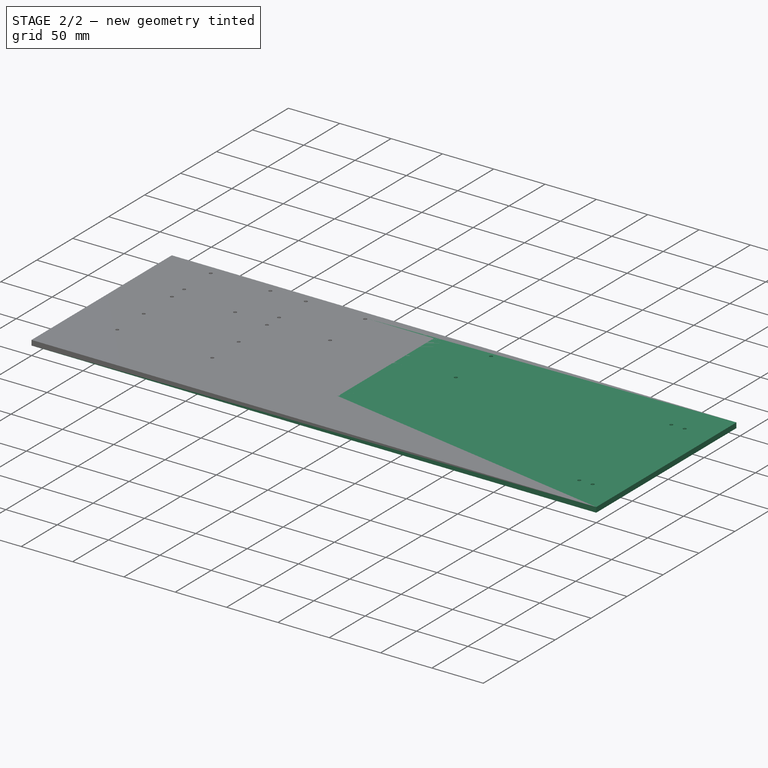
[diagram: stage 2 of 2 — iso view after this stage's code; geometry added in this stage tinted green]
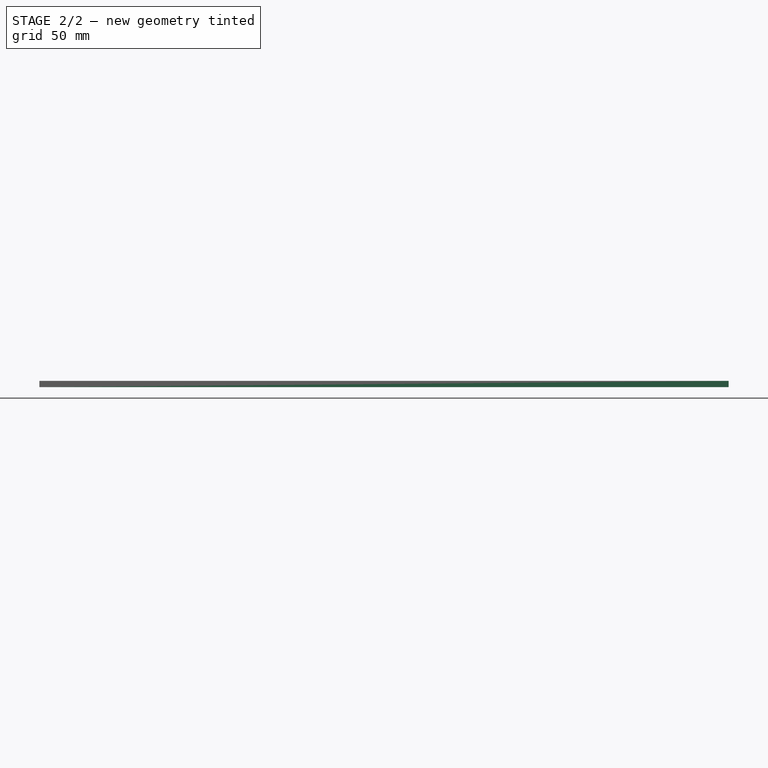
[diagram: stage 2 of 2 — front view after this stage's code; geometry added in this stage tinted green]
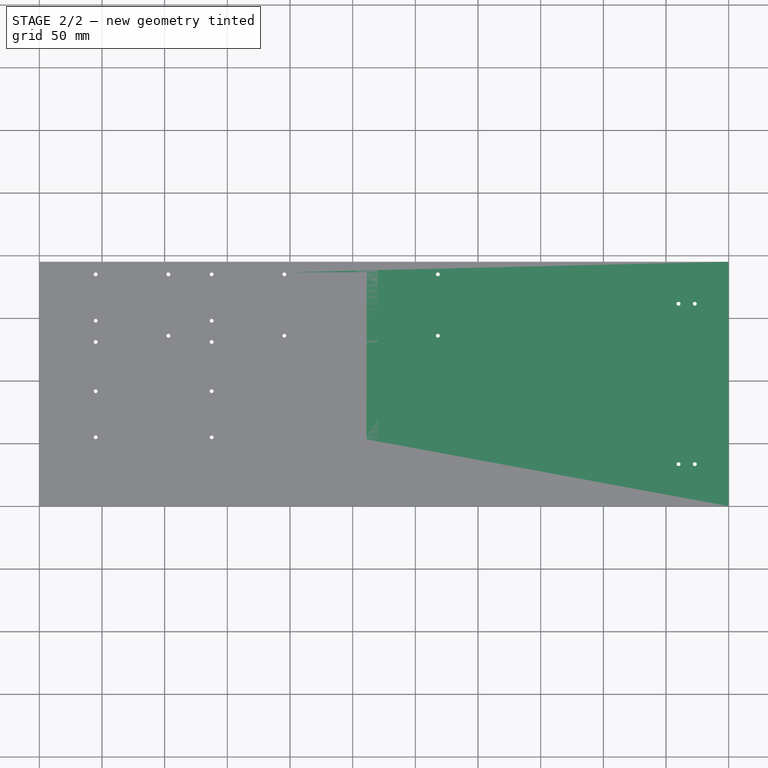
[diagram: stage 2 of 2 — top view after this stage's code; geometry added in this stage tinted green]
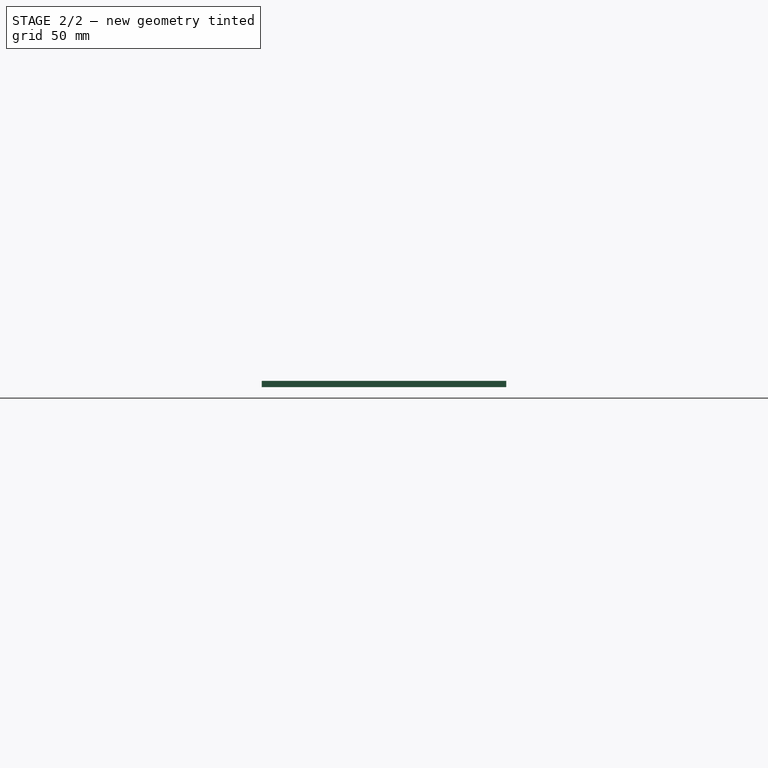
[diagram: stage 2 of 2 — right view after this stage's code; geometry added in this stage tinted green]
FEATURE [Part::Box] Box  label="1/2U Plate"
  Height = 5
  Length = 550
  Width = 195
FEATURE [Sketcher::SketchObject] Sketch  label="AR"
  Placement = pos=(40,50,5) rot=(0,0,1;0rad)
  sketch-geometry (4):
    g0: LineSegment StartX=0 StartY=0 StartZ=0 EndX=224.952 EndY=0 EndZ=0
    g1: LineSegment StartX=224.952 StartY=0 StartZ=0 EndX=224.952 EndY=139.966 EndZ=0
    g2: LineSegment StartX=224.952 StartY=139.966 StartZ=0 EndX=0 EndY=139.966 EndZ=0
    g3: LineSegment StartX=0 StartY=139.966 StartZ=0 EndX=0 EndY=0 EndZ=0
  constraints (8):
    c: Coincident(g0,g1)
    c: Coincident(g1,g2)
    c: Coincident(g2,g3)
    c: Coincident(g3,g0)
    c: Horizontal(g0)
    c: Horizontal(g2)
    c: Vertical(g1)
    c: Vertical(g3)
FEATURE [Sketcher::SketchObject] Sketch001  label="hole1"
  Placement = pos=(40,50,5) rot=(0,0,1;0rad)
  sketch-geometry (1):
    g0: Circle CenterX=4.97876 CenterY=5.0222 CenterZ=0 NormalX=0 NormalY=0 NormalZ=1 Radius=1.5614
FEATURE [Sketcher::SketchObject] Sketch002  label="hole2"
  Placement = pos=(40,180,5) rot=(0,0,1;0rad)
  expr: Placement.Base.y = 180
  sketch-geometry (1):
    g0: Circle CenterX=4.98216 CenterY=5.02276 CenterZ=0 NormalX=0 NormalY=0 NormalZ=1 Radius=1.5614
FEATURE [Sketcher::SketchObject] Sketch003  label="hole3"
  Placement = pos=(255,180,5) rot=(0,0,1;0rad)
  sketch-geometry (1):
    g0: Circle CenterX=4.98216 CenterY=5.02276 CenterZ=0 NormalX=0 NormalY=0 NormalZ=1 Radius=1.5614
FEATURE [Sketcher::SketchObject] Sketch004  label="hole4"
  Placement = pos=(255,50,5) rot=(0,0,1;0rad)
  sketch-geometry (1):
    g0: Circle CenterX=4.98216 CenterY=5.02276 CenterZ=0 NormalX=0 NormalY=0 NormalZ=1 Radius=1.5614
FEATURE [App::DocumentObjectGroup] Group001  label="AR_Board"
  Group = -> [Sketch,Sketch001,Sketch002,Sketch003,Sketch004]
FEATURE [Sketcher::SketchObject] Sketch005  label="MangOH_TOP"
  Placement = pos=(27,88.25,5) rot=(0,0,1;0rad)
  sketch-geometry (4):
    g0: LineSegment StartX=0 StartY=0 StartZ=0 EndX=119.474 EndY=0 EndZ=0
    g1: LineSegment StartX=119.474 StartY=0 StartZ=0 EndX=119.474 EndY=99.5293 EndZ=0
    g2: LineSegment StartX=119.474 StartY=99.5293 StartZ=0 EndX=0 EndY=99.5293 EndZ=0
    g3: LineSegment StartX=0 StartY=99.5293 StartZ=0 EndX=0 EndY=0 EndZ=0
  constraints (8):
    c: Coincident(g0,g1)
    c: Coincident(g1,g2)
    c: Coincident(g2,g3)
    c: Coincident(g3,g0)
    c: Horizontal(g0)
    c: Horizontal(g2)
    c: Vertical(g1)
    c: Vertical(g3)
FEATURE [Sketcher::SketchObject] Sketch006  label="hole5"
  Placement = pos=(40,86.75,5) rot=(0,0,1;0rad)
  expr: Placement.Base.y = 83.25 + 3.5
  sketch-geometry (1):
    g0: Circle CenterX=4.98216 CenterY=5.02276 CenterZ=0 NormalX=0 NormalY=0 NormalZ=1 Radius=1.5614
FEATURE [Sketcher::SketchObject] Sketch007  label="hole006"
  Placement = pos=(132.5,86.75,5) rot=(0,0,1;0rad)
  expr: Placement.Base.y = 86.75
  expr: Placement.Base.x = 132.5
  sketch-geometry (1):
    g0: Circle CenterX=5.00593 CenterY=5.01296 CenterZ=0 NormalX=0 NormalY=0 NormalZ=1 Radius=1.5614
FEATURE [Sketcher::SketchObject] Sketch008  label="hole007"
  Placement = pos=(132.5,180,5) rot=(0,0,1;0rad)
  expr: Placement.Base.x = 132.5
  sketch-geometry (1):
    g0: Circle CenterX=4.98216 CenterY=5.02276 CenterZ=0 NormalX=0 NormalY=0 NormalZ=1 Radius=1.5614
FEATURE [Sketcher::SketchObject] Sketch009  label="MangOH_BOT"
  Placement = pos=(27,51.75,5) rot=(0,0,1;0rad)
  expr: Placement.Base.y = 55 - 3.25
  expr: Placement.Base.x = 27
  sketch-geometry (4):
    g0: LineSegment StartX=0 StartY=0 StartZ=0 EndX=119.516 EndY=0 EndZ=0
    g1: LineSegment StartX=119.516 StartY=0 StartZ=0 EndX=119.516 EndY=99.4622 EndZ=0
    g2: LineSegment StartX=119.516 StartY=99.4622 StartZ=0 EndX=0 EndY=99.4622 EndZ=0
    g3: LineSegment StartX=0 StartY=99.4622 StartZ=0 EndX=0 EndY=0 EndZ=0
  constraints (8):
    c: Coincident(g0,g1)
    c: Coincident(g1,g2)
    c: Coincident(g2,g3)
    c: Coincident(g3,g0)
    c: Horizontal(g0)
    c: Horizontal(g2)
    c: Vertical(g1)
    c: Vertical(g3)
FEATURE [Sketcher::SketchObject] Sketch010  label="hole008"
  Placement = pos=(132.5,50,5) rot=(0,0,1;0rad)
  expr: Placement.Base.x = 132.5
  sketch-geometry (1):
    g0: Circle CenterX=4.98216 CenterY=5.02276 CenterZ=0 NormalX=0 NormalY=0 NormalZ=1 Radius=1.5614
FEATURE [Sketcher::SketchObject] Sketch011  label="hole009"
  Placement = pos=(132.5,143,5) rot=(0,0,1;0rad)
  expr: Placement.Base.x = 132.5
  expr: Placement.Base.y = 143
  sketch-geometry (1):
    g0: Circle CenterX=4.98216 CenterY=5.02276 CenterZ=0 NormalX=0 NormalY=0 NormalZ=1 Radius=1.5614
FEATURE [Sketcher::SketchObject] Sketch012  label="hole010"
  Placement = pos=(40,143,5) rot=(0,0,1;0rad)
  expr: Placement.Base.y = 143
  sketch-geometry (1):
    g0: Circle CenterX=4.98216 CenterY=5.02276 CenterZ=0 NormalX=0 NormalY=0 NormalZ=1 Radius=1.5614
FEATURE [App::DocumentObjectGroup] Group002  label="MangOH_Green"
  Group = -> [Sketch005,Sketch006,Sketch007,Sketch008,Sketch009,Sketch010,Sketch011,Sketch012]
FEATURE [Sketcher::SketchObject] Sketch013  label="MangOH_Left"
  Placement = pos=(39.5,127.5,5) rot=(0,0,1;0rad)
  expr: Placement.Base.x = 39.5
  sketch-geometry (4):
    g0: LineSegment StartX=0 StartY=0 StartZ=0 EndX=69.0277 EndY=0 EndZ=0
    g1: LineSegment StartX=69.0277 StartY=0 StartZ=0 EndX=69.0277 EndY=60.9956 EndZ=0
    g2: LineSegment StartX=69.0277 StartY=60.9956 StartZ=0 EndX=0 EndY=60.9956 EndZ=0
    g3: LineSegment StartX=0 StartY=60.9956 StartZ=0 EndX=0 EndY=0 EndZ=0
  constraints (8):
    c: Coincident(g0,g1)
    c: Coincident(g1,g2)
    c: Coincident(g2,g3)
    c: Coincident(g3,g0)
    c: Horizontal(g0)
    c: Horizontal(g2)
    c: Vertical(g1)
    c: Vertical(g3)
FEATURE [Sketcher::SketchObject] Sketch014  label="hole011"
  Placement = pos=(98,180,5) rot=(0,0,1;0rad)
  expr: Placement.Base.x = 98
  sketch-geometry (1):
    g0: Circle CenterX=4.98216 CenterY=5.02276 CenterZ=0 NormalX=0 NormalY=0 NormalZ=1 Radius=1.5614
FEATURE [Sketcher::SketchObject] Sketch015  label="hole012"
  Placement = pos=(98,131,5) rot=(0,0,1;0rad)
  expr: Placement.Base.y = 122.5 + 8.5
  expr: Placement.Base.x = 98
  sketch-geometry (1):
    g0: Circle CenterX=4.98216 CenterY=5.02276 CenterZ=0 NormalX=0 NormalY=0 NormalZ=1 Radius=1.5614
FEATURE [Sketcher::SketchObject] Sketch016  label="hole013"
  Placement = pos=(40,126,5) rot=(0,0,1;0rad)
  expr: Placement.Base.y = 126
  expr: Placement.Base.x = 40
  sketch-geometry (1):
    g0: Circle CenterX=4.98216 CenterY=5.02276 CenterZ=0 NormalX=0 NormalY=0 NormalZ=1 Radius=1.5614
FEATURE [Sketcher::SketchObject] Sketch017  label="MangOH_Middle"
  Placement = pos=(131.6,127.5,5) rot=(0,0,1;0rad)
  sketch-geometry (4):
    g0: LineSegment StartX=0 StartY=0 StartZ=0 EndX=69.0059 EndY=0 EndZ=0
    g1: LineSegment StartX=69.0059 StartY=0 StartZ=0 EndX=69.0059 EndY=60.9722 EndZ=0
    g2: LineSegment StartX=69.0059 StartY=60.9722 StartZ=0 EndX=0 EndY=60.9722 EndZ=0
    g3: LineSegment StartX=0 StartY=60.9722 StartZ=0 EndX=0 EndY=0 EndZ=0
  constraints (8):
    c: Coincident(g0,g1)
    c: Coincident(g1,g2)
    c: Coincident(g2,g3)
    c: Coincident(g3,g0)
    c: Horizontal(g0)
    c: Horizontal(g2)
    c: Vertical(g1)
    c: Vertical(g3)
FEATURE [Sketcher::SketchObject] Sketch018  label="hole014"
  Placement = pos=(190.5,180,5) rot=(0,0,1;0rad)
  expr: Placement.Base.x = 132.5 + 58
  sketch-geometry (1):
    g0: Circle CenterX=4.98216 CenterY=5.02276 CenterZ=0 NormalX=0 NormalY=0 NormalZ=1 Radius=1.5614
FEATURE [Sketcher::SketchObject] Sketch019  label="hole015"
  Placement = pos=(132.5,126,5) rot=(0,0,1;0rad)
  expr: Placement.Base.x = 132.5
  sketch-geometry (1):
    g0: Circle CenterX=4.98216 CenterY=5.02276 CenterZ=0 NormalX=0 NormalY=0 NormalZ=1 Radius=1.5614
FEATURE [Sketcher::SketchObject] Sketch020  label="hole016"
  Placement = pos=(190.5,131,5) rot=(0,0,1;0rad)
  expr: Placement.Base.x = 190.5
  sketch-geometry (1):
    g0: Circle CenterX=4.98216 CenterY=5.02276 CenterZ=0 NormalX=0 NormalY=0 NormalZ=1 Radius=1.5614
FEATURE [Sketcher::SketchObject] Sketch021
  Placement = pos=(0,0,5) rot=(0,0,1;0rad)
  Support = -> Box [Face6]
  sketch-geometry (24):
    g0: Circle CenterX=44.9823 CenterY=185.036 CenterZ=0 NormalX=0 NormalY=0 NormalZ=1 Radius=1.56973
    g1: Circle CenterX=102.971 CenterY=185.007 CenterZ=0 NormalX=0 NormalY=0 NormalZ=1 Radius=1.55788
    g2: Circle CenterX=102.971 CenterY=185.007 CenterZ=0 NormalX=0 NormalY=0 NormalZ=1 Radius=1.56861
    g3: Circle CenterX=137.494 CenterY=185.025 CenterZ=0 NormalX=0 NormalY=0 NormalZ=1 Radius=1.55947
    g4: Circle CenterX=44.986 CenterY=131.063 CenterZ=0 NormalX=0 NormalY=0 NormalZ=1 Radius=1.58268
    g5: Circle CenterX=44.9645 CenterY=148.03 CenterZ=0 NormalX=0 NormalY=0 NormalZ=1 Radius=1.55138
    g6: Circle CenterX=259.977 CenterY=185.019 CenterZ=0 NormalX=0 NormalY=0 NormalZ=1 Radius=1.57007
    g7: Circle CenterX=195.462 CenterY=185.026 CenterZ=0 NormalX=0 NormalY=0 NormalZ=1 Radius=1.57012
    g8: Circle CenterX=102.976 CenterY=136.027 CenterZ=0 NormalX=0 NormalY=0 NormalZ=1 Radius=1.58211
    g9: Circle CenterX=137.495 CenterY=147.98 CenterZ=0 NormalX=0 NormalY=0 NormalZ=1 Radius=1.56729
    g10: Circle CenterX=137.516 CenterY=131.01 CenterZ=0 NormalX=0 NormalY=0 NormalZ=1 Radius=1.56341
    g11: Circle CenterX=195.483 CenterY=136.037 CenterZ=0 NormalX=0 NormalY=0 NormalZ=1 Radius=1.56943
    g12: Circle CenterX=44.9758 CenterY=91.7522 CenterZ=0 NormalX=0 NormalY=0 NormalZ=1 Radius=1.54812
    g13: Circle CenterX=44.9507 CenterY=55.0191 CenterZ=0 NormalX=0 NormalY=0 NormalZ=1 Radius=1.56373
    g14: Circle CenterX=137.484 CenterY=91.7796 CenterZ=0 NormalX=0 NormalY=0 NormalZ=1 Radius=1.55752
    g15: Circle CenterX=137.504 CenterY=54.9986 CenterZ=0 NormalX=0 NormalY=0 NormalZ=1 Radius=1.56574
    g16: Circle CenterX=259.989 CenterY=55.0431 CenterZ=0 NormalX=0 NormalY=0 NormalZ=1 Radius=1.54734
    g17: Circle CenterX=509.963 CenterY=161.544 CenterZ=0 NormalX=0 NormalY=0 NormalZ=1 Radius=1.57303
    g18: Circle CenterX=522.975 CenterY=161.527 CenterZ=0 NormalX=0 NormalY=0 NormalZ=1 Radius=1.5597
    g19: Circle CenterX=509.982 CenterY=33.538 CenterZ=0 NormalX=0 NormalY=0 NormalZ=1 Radius=1.57125
    g20: Circle CenterX=522.991 CenterY=33.5385 CenterZ=0 NormalX=0 NormalY=0 NormalZ=1 Radius=1.59235
    g21: Circle CenterX=259.99 CenterY=131.026 CenterZ=0 NormalX=0 NormalY=0 NormalZ=1 Radius=1.56529
    g22: Circle CenterX=317.986 CenterY=185.03 CenterZ=0 NormalX=0 NormalY=0 NormalZ=1 Radius=1.55469
    g23: Circle CenterX=317.98 CenterY=136.037 CenterZ=0 NormalX=0 NormalY=0 NormalZ=1 Radius=1.57218
  constraints (1):
    c: Coincident(g2,g1)
FEATURE [PartDesign::Pocket] Pocket
  Length = 5
  Sketch = -> Sketch021
  Type = 0
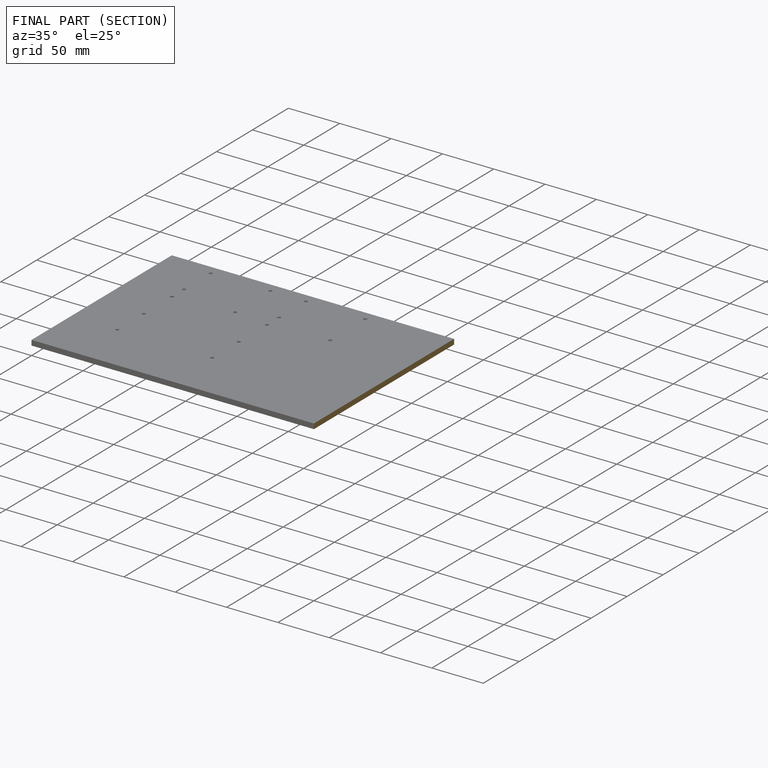
[diagram: finished part — half-section view (interior)]
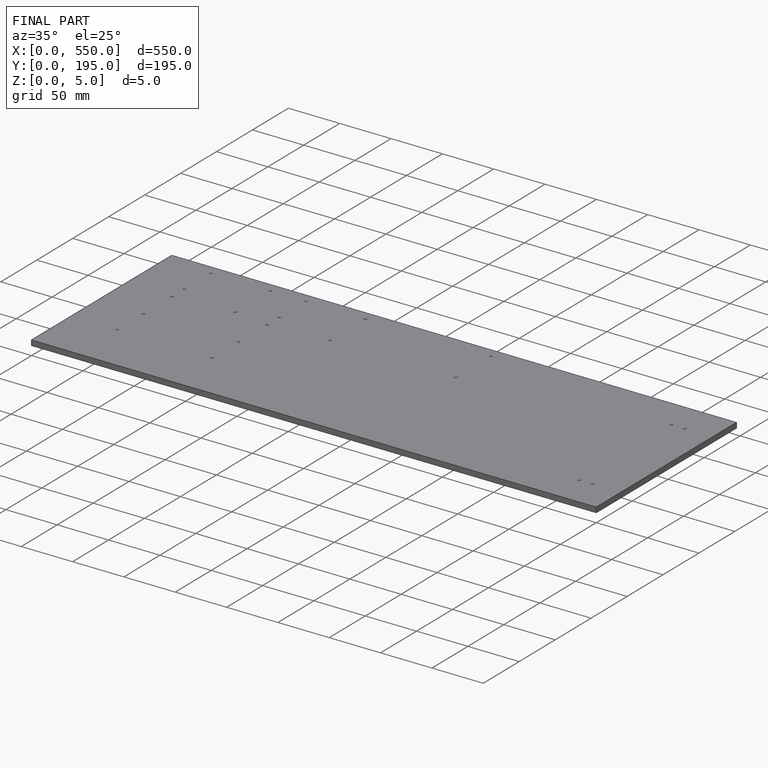
[diagram: finished part — iso view with bounding-box wireframe]
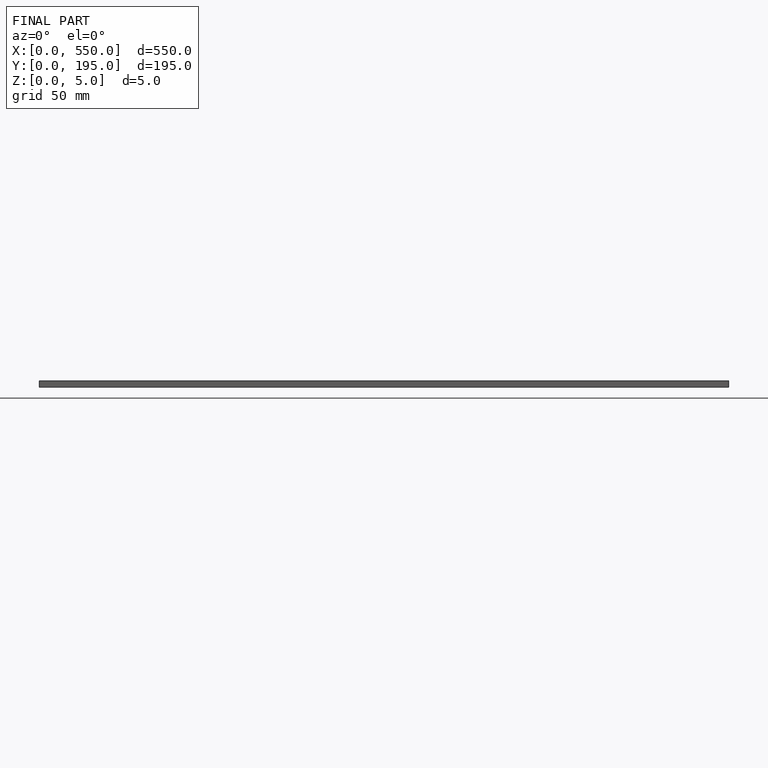
[diagram: finished part — front view with bounding-box wireframe]
